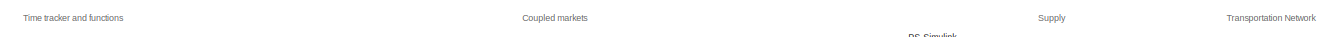
[diagram: root canvas - part 1/9, top left region]
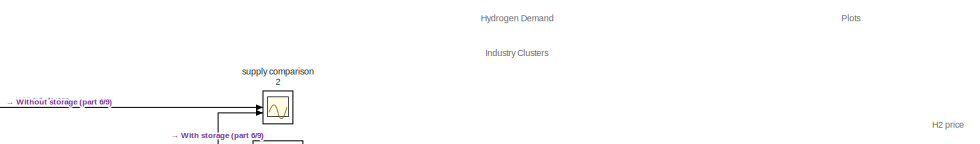
[diagram: root canvas - part 2/9, top right region]
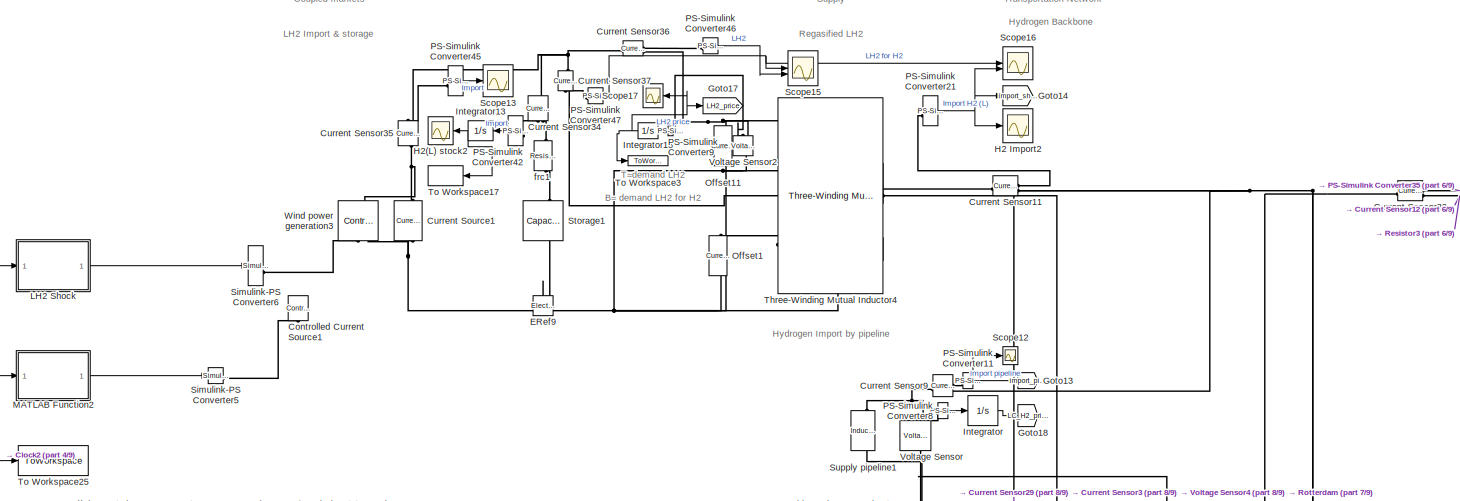
[diagram: root canvas - part 3/9, top left region]
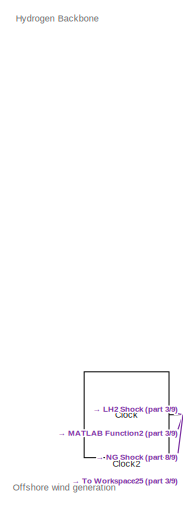
[diagram: root canvas - part 4/9, top left region]
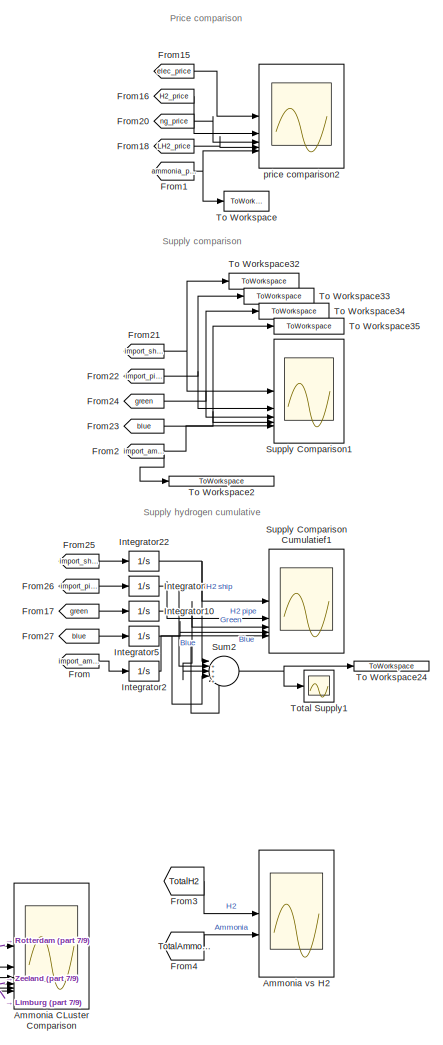
[diagram: root canvas - part 5/9, middle right region]
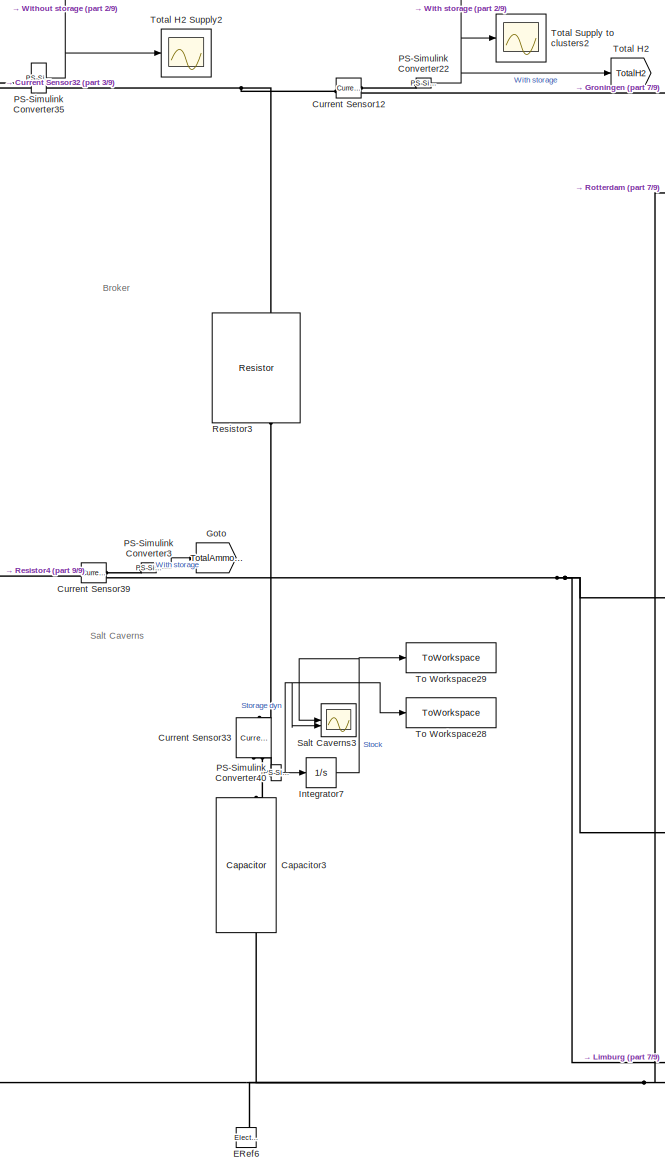
[diagram: root canvas - part 6/9, central region]
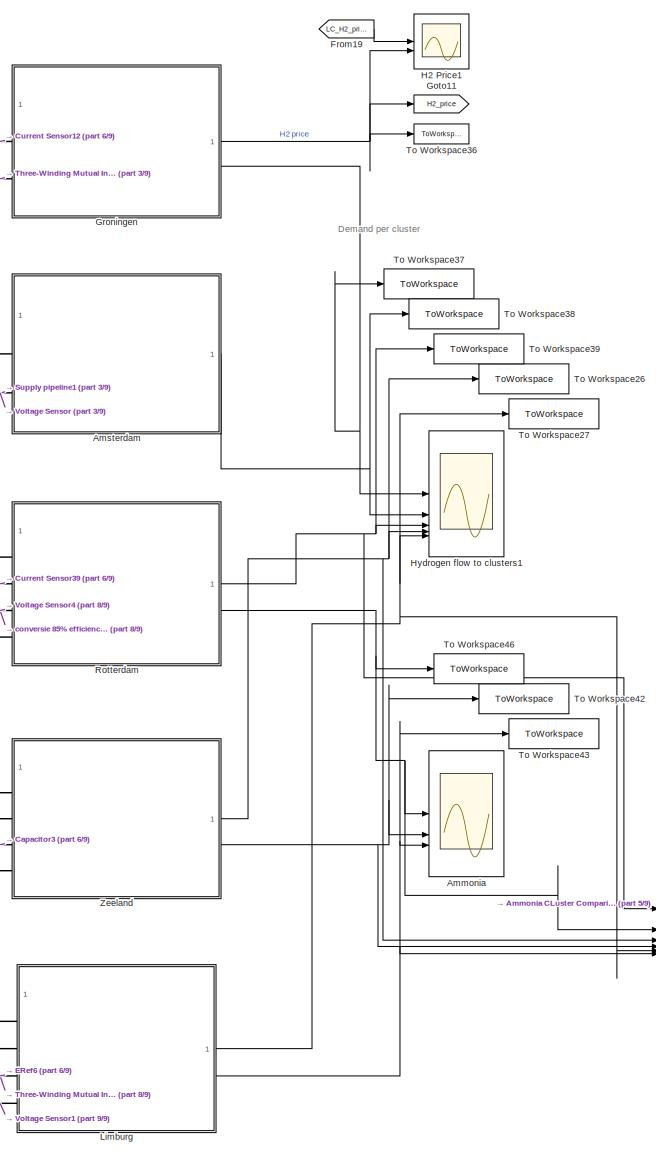
[diagram: root canvas - part 7/9, middle right region]
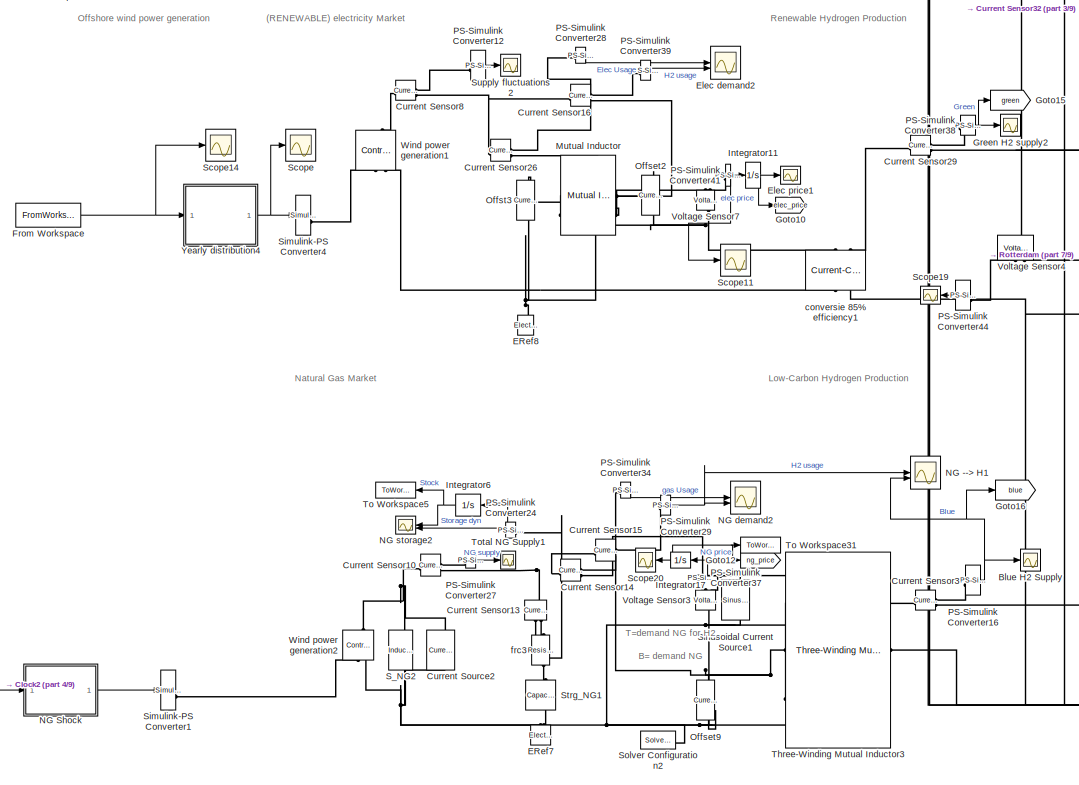
[diagram: root canvas - part 8/9, middle left region]
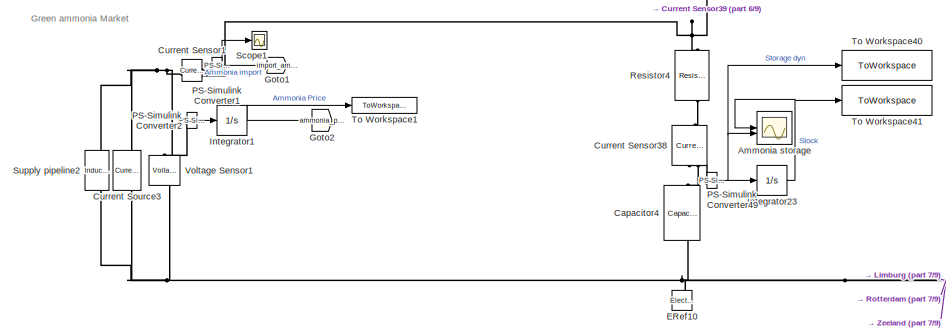
[diagram: root canvas - part 9/9, bottom center region]
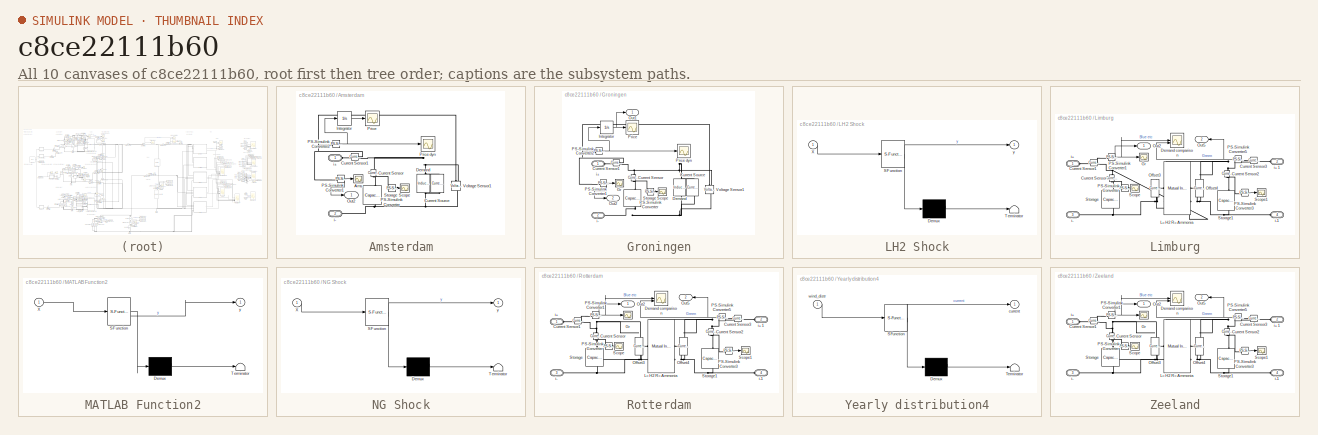
[diagram: thumbnail index - all 10 canvases of the model, root first then tree order]
MODEL slx_c8ce22111b60
KIND model
CONFIG AbsTol = auto
CONFIG EnableMultiTasking = off
CONFIG FixedStep = 1/24
CONFIG MaxStep = auto
CONFIG MinStep = auto
CONFIG RelTol = 1e-3
CONFIG SampleTimeConstraint = Unconstrained
CONFIG SolverName = FixedStepAuto
CONFIG StartTime = 0.0
CONFIG StopTime = Z
BLOCK [Scope] Ammonia
  Floating = off
  NumInputPorts = 3
  ScopeSpecificationString = Simulink.scopes.TimeScopeBlockCfg('CurrentConfiguration', extmgr.ConfigurationSet(extmgr.Configuration('Core','General UI',true),extmgr.Configuration('Core','Source UI',true),extmgr.Configuration('Sources','WiredSimulink',true,'DataLoggingVariableName','ScopeData1'),extmgr.Configuration('Visuals','Time Domain',true,'SerializedDisplays',{struct('MinYLimReal','-0.02669','MaxYLimReal','0.1113','YLabe...<+1639ch>
BLOCK [Scope] Ammonia CLuster Comparison
  Floating = off
  NumInputPorts = 6
  ScopeSpecificationString = Simulink.scopes.TimeScopeBlockCfg('CurrentConfiguration', extmgr.ConfigurationSet(extmgr.Configuration('Core','General UI',true),extmgr.Configuration('Core','Source UI',true),extmgr.Configuration('Sources','WiredSimulink',true,'DataLoggingVariableName','ScopeData13'),extmgr.Configuration('Visuals','Time Domain',true,'SerializedDisplays',{struct('MinYLimReal','-0.06515','MaxYLimReal','0.18985','YLa...<+1707ch>
BLOCK [Scope] Ammonia storage
  Floating = off
  NumInputPorts = 2
  ScopeSpecificationString = Simulink.scopes.TimeScopeBlockCfg('CurrentConfiguration', extmgr.ConfigurationSet(extmgr.Configuration('Core','General UI',true),extmgr.Configuration('Core','Source UI',true),extmgr.Configuration('Sources','WiredSimulink',true,'DataLoggingVariableName','ScopeData2'),extmgr.Configuration('Visuals','Time Domain',true,'SerializedDisplays',{struct('MinYLimReal','-0.05503','MaxYLimReal','0.15942','YLab...<+1494ch>
BLOCK [Scope] Ammonia vs H2
  Floating = off
  NumInputPorts = 2
  ScopeSpecificationString = Simulink.scopes.TimeScopeBlockCfg('CurrentConfiguration', extmgr.ConfigurationSet(extmgr.Configuration('Core','General UI',true),extmgr.Configuration('Core','Source UI',true),extmgr.Configuration('Sources','WiredSimulink',true,'DataLoggingVariableName','ScopeData14'),extmgr.Configuration('Visuals','Time Domain',true,'SerializedDisplays',{struct('MinYLimReal','-0.03264','MaxYLimReal','0.49376','YLa...<+1615ch>
BLOCK [SubSystem] Amsterdam
BLOCK [Scope] Amsterdam/Ams
  Floating = off
  NumInputPorts = 1
  ScopeSpecificationString = Simulink.scopes.TimeScopeBlockCfg('CurrentConfiguration', extmgr.ConfigurationSet(extmgr.Configuration('Core','General UI',true),extmgr.Configuration('Core','Source UI',true),extmgr.Configuration('Sources','WiredSimulink',true,'DataLoggingVariableName','ScopeData34'),extmgr.Configuration('Visuals','Time Domain',true,'SerializedDisplays',{struct('MinYLimReal','-0.37733','MaxYLimReal','2.2197','YLab...<+1377ch>
BLOCK [Reference] Amsterdam/Current Sensor  REF=fl_lib/Electrical/Electrical Sensors/Current Sensor
  NameLocation = left
  SourceBlock = fl_lib/Electrical/Electrical Sensors/Current Sensor
  SourceType = Current Sensor
BLOCK [Reference] Amsterdam/Current Sensor1  REF=fl_lib/Electrical/Electrical Sensors/Current Sensor
  SourceBlock = fl_lib/Electrical/Electrical Sensors/Current Sensor
  SourceType = Current Sensor
BLOCK [Reference] Amsterdam/Current Source  REF=ee_lib/Sources/Current Source
  NameLocation = left
  SourceBlock = ee_lib/Sources/Current Source
  SourceType = Current Source
BLOCK [Reference] Amsterdam/Demand  REF=ee_lib/Passive/Inductor
  NameLocation = left
  SourceBlock = ee_lib/Passive/Inductor
  SourceType = Inductor
BLOCK [Integrator] Amsterdam/Integrator
BLOCK [Outport] Amsterdam/Out2
BLOCK [Reference] Amsterdam/PS-Simulink Converter  REF=nesl_utility/PS-Simulink
Converter
  SourceBlock = nesl_utility/PS-Simulink\nConverter
  SourceType = PS-Simulink\nConverter
BLOCK [Reference] Amsterdam/PS-Simulink Converter1  REF=nesl_utility/PS-Simulink
Converter
  SourceBlock = nesl_utility/PS-Simulink\nConverter
  SourceType = PS-Simulink\nConverter
BLOCK [Reference] Amsterdam/PS-Simulink Converter2  REF=nesl_utility/PS-Simulink
Converter
  SourceBlock = nesl_utility/PS-Simulink\nConverter
  SourceType = PS-Simulink\nConverter
BLOCK [Scope] Amsterdam/Price 
  Floating = off
  NumInputPorts = 1
  ScopeSpecificationString = Simulink.scopes.TimeScopeBlockCfg('CurrentConfiguration', extmgr.ConfigurationSet(extmgr.Configuration('Core','General UI',true),extmgr.Configuration('Core','Source UI',true),extmgr.Configuration('Sources','WiredSimulink',true,'DataLoggingVariableName','ScopeData35'),extmgr.Configuration('Visuals','Time Domain',true,'SerializedDisplays',{struct('MinYLimReal','-0.244','MaxYLimReal','0.02711','YLabe...<+1396ch>
BLOCK [Scope] Amsterdam/Price dyn
  Floating = off
  NumInputPorts = 1
  ScopeSpecificationString = Simulink.scopes.TimeScopeBlockCfg('CurrentConfiguration', extmgr.ConfigurationSet(extmgr.Configuration('Core','General UI',true),extmgr.Configuration('Core','Source UI',true),extmgr.Configuration('Sources','WiredSimulink',true,'DataLoggingVariableName','ScopeData36'),extmgr.Configuration('Visuals','Time Domain',true,'SerializedDisplays',{struct('MinYLimReal','-2.85552','MaxYLimReal','0.64869','YLa...<+1411ch>
BLOCK [Scope] Amsterdam/Scope
  Floating = off
  NumInputPorts = 1
  ScopeSpecificationString = Simulink.scopes.TimeScopeBlockCfg('CurrentConfiguration', extmgr.ConfigurationSet(extmgr.Configuration('Core','General UI',true),extmgr.Configuration('Core','Source UI',true),extmgr.Configuration('Sources','WiredSimulink',true,'DataLoggingVariableName','ScopeData37'),extmgr.Configuration('Visuals','Time Domain',true,'SerializedDisplays',{struct('MinYLimReal','-0.05818','MaxYLimReal','0.04351','YLa...<+1410ch>
BLOCK [Reference] Amsterdam/Storage  REF=fl_lib/Electrical/Electrical Elements/Capacitor
  NameLocation = right
  SourceBlock = fl_lib/Electrical/Electrical Elements/Capacitor
  SourceType = Capacitor
BLOCK [Reference] Amsterdam/Voltage Sensor1  REF=fl_lib/Electrical/Electrical Sensors/Voltage Sensor
  NameLocation = right
  SourceBlock = fl_lib/Electrical/Electrical Sensors/Voltage Sensor
  SourceType = Voltage Sensor
BLOCK [PMIOPort] Amsterdam/i+ 
  Side = Left
  Tag = PMCPort
BLOCK [PMIOPort] Amsterdam/i-
  Port = 2
  Side = Left
  Tag = PMCPort
BLOCK [Scope] Blue H2 Supply
  Floating = off
  NumInputPorts = 1
  ScopeSpecificationString = Simulink.scopes.TimeScopeBlockCfg('CurrentConfiguration', extmgr.ConfigurationSet(extmgr.Configuration('Core','General UI',true),extmgr.Configuration('Core','Source UI',true),extmgr.Configuration('Sources','WiredSimulink',true,'DataLoggingVariableName','ScopeData3'),extmgr.Configuration('Visuals','Time Domain',true,'SerializedDisplays',{struct('MinYLimReal','-0.07535','MaxYLimReal','0.18841','YLab...<+1398ch>
BLOCK [Reference] Capacitor3  REF=fl_lib/Electrical/Electrical Elements/Capacitor
  NameLocation = right
  SourceBlock = fl_lib/Electrical/Electrical Elements/Capacitor
  SourceType = Capacitor
BLOCK [Reference] Capacitor4  REF=fl_lib/Electrical/Electrical Elements/Capacitor
  NameLocation = right
  SourceBlock = fl_lib/Electrical/Electrical Elements/Capacitor
  SourceType = Capacitor
BLOCK [Clock] Clock2
  Decimation = 24
  DisplayTime = on
BLOCK [Reference] Controlled Current Source1  REF=fl_lib/Electrical/Electrical Sources/Controlled Current
Source
  Commented = on
  NameLocation = right
  SourceBlock = fl_lib/Electrical/Electrical Sources/Controlled Current\nSource
  SourceType = Controlled Current\nSource
BLOCK [Reference] Current Sensor1  REF=fl_lib/Electrical/Electrical Sensors/Current Sensor
  SourceBlock = fl_lib/Electrical/Electrical Sensors/Current Sensor
  SourceType = Current Sensor
BLOCK [Reference] Current Sensor10  REF=fl_lib/Electrical/Electrical Sensors/Current Sensor
  SourceBlock = fl_lib/Electrical/Electrical Sensors/Current Sensor
  SourceType = Current Sensor
BLOCK [Reference] Current Sensor11  REF=fl_lib/Electrical/Electrical Sensors/Current Sensor
  SourceBlock = fl_lib/Electrical/Electrical Sensors/Current Sensor
  SourceType = Current Sensor
BLOCK [Reference] Current Sensor12  REF=fl_lib/Electrical/Electrical Sensors/Current Sensor
  SourceBlock = fl_lib/Electrical/Electrical Sensors/Current Sensor
  SourceType = Current Sensor
BLOCK [Reference] Current Sensor13  REF=fl_lib/Electrical/Electrical Sensors/Current Sensor
  NameLocation = left
  SourceBlock = fl_lib/Electrical/Electrical Sensors/Current Sensor
  SourceType = Current Sensor
BLOCK [Reference] Current Sensor14  REF=fl_lib/Electrical/Electrical Sensors/Current Sensor
  SourceBlock = fl_lib/Electrical/Electrical Sensors/Current Sensor
  SourceType = Current Sensor
BLOCK [Reference] Current Sensor15  REF=fl_lib/Electrical/Electrical Sensors/Current Sensor
  SourceBlock = fl_lib/Electrical/Electrical Sensors/Current Sensor
  SourceType = Current Sensor
BLOCK [Reference] Current Sensor16  REF=fl_lib/Electrical/Electrical Sensors/Current Sensor
  SourceBlock = fl_lib/Electrical/Electrical Sensors/Current Sensor
  SourceType = Current Sensor
BLOCK [Reference] Current Sensor26  REF=fl_lib/Electrical/Electrical Sensors/Current Sensor
  SourceBlock = fl_lib/Electrical/Electrical Sensors/Current Sensor
  SourceType = Current Sensor
BLOCK [Reference] Current Sensor29  REF=fl_lib/Electrical/Electrical Sensors/Current Sensor
  SourceBlock = fl_lib/Electrical/Electrical Sensors/Current Sensor
  SourceType = Current Sensor
BLOCK [Reference] Current Sensor3  REF=fl_lib/Electrical/Electrical Sensors/Current Sensor
  SourceBlock = fl_lib/Electrical/Electrical Sensors/Current Sensor
  SourceType = Current Sensor
BLOCK [Reference] Current Sensor32  REF=fl_lib/Electrical/Electrical Sensors/Current Sensor
  SourceBlock = fl_lib/Electrical/Electrical Sensors/Current Sensor
  SourceType = Current Sensor
BLOCK [Reference] Current Sensor33  REF=fl_lib/Electrical/Electrical Sensors/Current Sensor
  NameLocation = left
  SourceBlock = fl_lib/Electrical/Electrical Sensors/Current Sensor
  SourceType = Current Sensor
BLOCK [Reference] Current Sensor34  REF=fl_lib/Electrical/Electrical Sensors/Current Sensor
  NameLocation = right
  SourceBlock = fl_lib/Electrical/Electrical Sensors/Current Sensor
  SourceType = Current Sensor
BLOCK [Reference] Current Sensor35  REF=fl_lib/Electrical/Electrical Sensors/Current Sensor
  NameLocation = right
  SourceBlock = fl_lib/Electrical/Electrical Sensors/Current Sensor
  SourceType = Current Sensor
BLOCK [Reference] Current Sensor36  REF=fl_lib/Electrical/Electrical Sensors/Current Sensor
  SourceBlock = fl_lib/Electrical/Electrical Sensors/Current Sensor
  SourceType = Current Sensor
BLOCK [Reference] Current Sensor37  REF=fl_lib/Electrical/Electrical Sensors/Current Sensor
  NameLocation = left
  SourceBlock = fl_lib/Electrical/Electrical Sensors/Current Sensor
  SourceType = Current Sensor
BLOCK [Reference] Current Sensor38  REF=fl_lib/Electrical/Electrical Sensors/Current Sensor
  NameLocation = left
  SourceBlock = fl_lib/Electrical/Electrical Sensors/Current Sensor
  SourceType = Current Sensor
BLOCK [Reference] Current Sensor39  REF=fl_lib/Electrical/Electrical Sensors/Current Sensor
  SourceBlock = fl_lib/Electrical/Electrical Sensors/Current Sensor
  SourceType = Current Sensor
BLOCK [Reference] Current Sensor8  REF=fl_lib/Electrical/Electrical Sensors/Current Sensor
  SourceBlock = fl_lib/Electrical/Electrical Sensors/Current Sensor
  SourceType = Current Sensor
BLOCK [Reference] Current Sensor9  REF=fl_lib/Electrical/Electrical Sensors/Current Sensor
  SourceBlock = fl_lib/Electrical/Electrical Sensors/Current Sensor
  SourceType = Current Sensor
BLOCK [Reference] Current Source1  REF=ee_lib/Sources/Current Source
  NameLocation = right
  SourceBlock = ee_lib/Sources/Current Source
  SourceType = Current Source
BLOCK [Reference] Current Source2  REF=ee_lib/Sources/Current Source
  NameLocation = right
  SourceBlock = ee_lib/Sources/Current Source
  SourceType = Current Source
BLOCK [Reference] Current Source3  REF=ee_lib/Sources/Current Source
  NameLocation = right
  SourceBlock = ee_lib/Sources/Current Source
  SourceType = Current Source
BLOCK [Reference] ERef10  REF=fl_lib/Electrical/Electrical Elements/Electrical Reference
  NameLocation = left
  SourceBlock = fl_lib/Electrical/Electrical Elements/Electrical Reference
  SourceType = Electrical Reference
BLOCK [Reference] ERef6  REF=fl_lib/Electrical/Electrical Elements/Electrical Reference
  NameLocation = left
  SourceBlock = fl_lib/Electrical/Electrical Elements/Electrical Reference
  SourceType = Electrical Reference
BLOCK [Reference] ERef7  REF=fl_lib/Electrical/Electrical Elements/Electrical Reference
  NameLocation = left
  SourceBlock = fl_lib/Electrical/Electrical Elements/Electrical Reference
  SourceType = Electrical Reference
BLOCK [Reference] ERef8  REF=fl_lib/Electrical/Electrical Elements/Electrical Reference
  NameLocation = left
  SourceBlock = fl_lib/Electrical/Electrical Elements/Electrical Reference
  SourceType = Electrical Reference
BLOCK [Reference] ERef9  REF=fl_lib/Electrical/Electrical Elements/Electrical Reference
  NameLocation = left
  SourceBlock = fl_lib/Electrical/Electrical Elements/Electrical Reference
  SourceType = Electrical Reference
BLOCK [Scope] Elec demand2
  Floating = off
  NumInputPorts = 2
  ScopeSpecificationString = Simulink.scopes.TimeScopeBlockCfg('CurrentConfiguration', extmgr.ConfigurationSet(extmgr.Configuration('Core','General UI',true),extmgr.Configuration('Core','Source UI',true),extmgr.Configuration('Sources','WiredSimulink',true,'DataLoggingVariableName','ScopeData4'),extmgr.Configuration('Visuals','Time Domain',true,'SerializedDisplays',{struct('MinYLimReal','-0.2591','MaxYLimReal','0.42323','YLabe...<+1494ch>
BLOCK [Scope] Elec price1
  Floating = off
  NameLocation = right
  NumInputPorts = 1
  ScopeSpecificationString = Simulink.scopes.TimeScopeBlockCfg('CurrentConfiguration', extmgr.ConfigurationSet(extmgr.Configuration('Core','General UI',true),extmgr.Configuration('Core','Source UI',true),extmgr.Configuration('Sources','WiredSimulink',true,'DataLoggingVariableName','ScopeData5'),extmgr.Configuration('Visuals','Time Domain',true,'SerializedDisplays',{struct('MinYLimReal','-0.05691','MaxYLimReal','0.07674','YLab...<+1489ch>
BLOCK [From] From
  GotoTag = import_ammonia
BLOCK [FromWorkspace] From Workspace
  OutDataTypeStr = double
  VariableName = Wind_Distr_2019_input
BLOCK [From] From1
  GotoTag = ammonia_price
BLOCK [From] From15
  GotoTag = elec_price
BLOCK [From] From16
  GotoTag = H2_price
BLOCK [From] From17
  GotoTag = green
BLOCK [From] From18
  GotoTag = LH2_price
BLOCK [From] From19
  GotoTag = LC_H2_price
BLOCK [From] From2
  GotoTag = import_ammonia
BLOCK [From] From20
  GotoTag = ng_price
BLOCK [From] From21
  GotoTag = import_ship
BLOCK [From] From22
  GotoTag = import_pipe
BLOCK [From] From23
  GotoTag = blue
BLOCK [From] From24
  GotoTag = green
BLOCK [From] From25
  GotoTag = import_ship
BLOCK [From] From26
  GotoTag = import_pipe
BLOCK [From] From27
  GotoTag = blue
BLOCK [From] From3
  GotoTag = TotalH2
BLOCK [From] From4
  GotoTag = TotalAmmonia
BLOCK [Goto] Goto
  GotoTag = TotalAmmonia
BLOCK [Goto] Goto1
  GotoTag = import_ammonia
BLOCK [Goto] Goto10
  GotoTag = elec_price
BLOCK [Goto] Goto11
  GotoTag = H2_price
BLOCK [Goto] Goto12
  GotoTag = ng_price
BLOCK [Goto] Goto13
  GotoTag = import_pipe
BLOCK [Goto] Goto14
  GotoTag = import_ship
BLOCK [Goto] Goto15
  GotoTag = green
BLOCK [Goto] Goto16
  GotoTag = blue
BLOCK [Goto] Goto17
  GotoTag = LH2_price
BLOCK [Goto] Goto18
  GotoTag = LC_H2_price
BLOCK [Goto] Goto2
  GotoTag = ammonia_price
BLOCK [Scope] Green H2 supply2
  Floating = off
  NumInputPorts = 1
  ScopeSpecificationString = Simulink.scopes.TimeScopeBlockCfg('CurrentConfiguration', extmgr.ConfigurationSet(extmgr.Configuration('Core','General UI',true),extmgr.Configuration('Core','Source UI',true),extmgr.Configuration('Sources','WiredSimulink',true,'DataLoggingVariableName','ScopeData6'),extmgr.Configuration('Visuals','Time Domain',true,'SerializedDisplays',{struct('MinYLimReal','-0.0315','MaxYLimReal','0.40721','YLabe...<+1435ch>
BLOCK [SubSystem] Groningen
BLOCK [Reference] Groningen/Current Sensor  REF=fl_lib/Electrical/Electrical Sensors/Current Sensor
  NameLocation = left
  SourceBlock = fl_lib/Electrical/Electrical Sensors/Current Sensor
  SourceType = Current Sensor
BLOCK [Reference] Groningen/Current Sensor1  REF=fl_lib/Electrical/Electrical Sensors/Current Sensor
  SourceBlock = fl_lib/Electrical/Electrical Sensors/Current Sensor
  SourceType = Current Sensor
BLOCK [Reference] Groningen/Current Source  REF=ee_lib/Sources/Current Source
  NameLocation = left
  SourceBlock = ee_lib/Sources/Current Source
  SourceType = Current Source
BLOCK [Reference] Groningen/Demand  REF=ee_lib/Passive/Inductor
  NameLocation = left
  SourceBlock = ee_lib/Passive/Inductor
  SourceType = Inductor
BLOCK [Scope] Groningen/Gr
  Floating = off
  NumInputPorts = 1
  ScopeSpecificationString = Simulink.scopes.TimeScopeBlockCfg('CurrentConfiguration', extmgr.ConfigurationSet(extmgr.Configuration('Core','General UI',true),extmgr.Configuration('Core','Source UI',true),extmgr.Configuration('Sources','WiredSimulink',true,'DataLoggingVariableName','ScopeData34'),extmgr.Configuration('Visuals','Time Domain',true,'SerializedDisplays',{struct('MinYLimReal','0.02465','MaxYLimReal','0.12849','YLab...<+1380ch>
BLOCK [Integrator] Groningen/Integrator
BLOCK [Outport] Groningen/Out1
BLOCK [Outport] Groningen/Out2
  Port = 2
BLOCK [Reference] Groningen/PS-Simulink Converter  REF=nesl_utility/PS-Simulink
Converter
  SourceBlock = nesl_utility/PS-Simulink\nConverter
  SourceType = PS-Simulink\nConverter
BLOCK [Reference] Groningen/PS-Simulink Converter1  REF=nesl_utility/PS-Simulink
Converter
  SourceBlock = nesl_utility/PS-Simulink\nConverter
  SourceType = PS-Simulink\nConverter
BLOCK [Reference] Groningen/PS-Simulink Converter2  REF=nesl_utility/PS-Simulink
Converter
  SourceBlock = nesl_utility/PS-Simulink\nConverter
  SourceType = PS-Simulink\nConverter
BLOCK [Scope] Groningen/Price 
  Floating = off
  NumInputPorts = 1
  ScopeSpecificationString = Simulink.scopes.TimeScopeBlockCfg('CurrentConfiguration', extmgr.ConfigurationSet(extmgr.Configuration('Core','General UI',true),extmgr.Configuration('Core','Source UI',true),extmgr.Configuration('Sources','WiredSimulink',true,'DataLoggingVariableName','ScopeData35'),extmgr.Configuration('Visuals','Time Domain',true,'SerializedDisplays',{struct('MinYLimReal','-0.00054','MaxYLimReal','0.00489','YLa...<+1404ch>
BLOCK [Scope] Groningen/Price dyn
  Floating = off
  NumInputPorts = 1
  ScopeSpecificationString = Simulink.scopes.TimeScopeBlockCfg('CurrentConfiguration', extmgr.ConfigurationSet(extmgr.Configuration('Core','General UI',true),extmgr.Configuration('Core','Source UI',true),extmgr.Configuration('Sources','WiredSimulink',true,'DataLoggingVariableName','ScopeData36'),extmgr.Configuration('Visuals','Time Domain',true,'SerializedDisplays',{struct('MinYLimReal','-0.00582','MaxYLimReal','0.01451','YLa...<+1411ch>
BLOCK [Scope] Groningen/Scope
  Floating = off
  NumInputPorts = 1
  ScopeSpecificationString = Simulink.scopes.TimeScopeBlockCfg('CurrentConfiguration', extmgr.ConfigurationSet(extmgr.Configuration('Core','General UI',true),extmgr.Configuration('Core','Source UI',true),extmgr.Configuration('Sources','WiredSimulink',true,'DataLoggingVariableName','ScopeData37'),extmgr.Configuration('Visuals','Time Domain',true,'SerializedDisplays',{struct('MinYLimReal','-0.00763','MaxYLimReal','0.02317','YLa...<+1425ch>
BLOCK [Reference] Groningen/Storage  REF=fl_lib/Electrical/Electrical Elements/Capacitor
  NameLocation = right
  SourceBlock = fl_lib/Electrical/Electrical Elements/Capacitor
  SourceType = Capacitor
BLOCK [Reference] Groningen/Voltage Sensor1  REF=fl_lib/Electrical/Electrical Sensors/Voltage Sensor
  NameLocation = right
  SourceBlock = fl_lib/Electrical/Electrical Sensors/Voltage Sensor
  SourceType = Voltage Sensor
BLOCK [PMIOPort] Groningen/i+ 
  Side = Left
  Tag = PMCPort
BLOCK [PMIOPort] Groningen/i-
  Port = 2
  Side = Left
  Tag = PMCPort
BLOCK [Scope] H2 Import2
  Floating = off
  NumInputPorts = 1
  ScopeSpecificationString = Simulink.scopes.TimeScopeBlockCfg('CurrentConfiguration', extmgr.ConfigurationSet(extmgr.Configuration('Core','General UI',true),extmgr.Configuration('Core','Source UI',true),extmgr.Configuration('Sources','WiredSimulink',true,'DataLoggingVariableName','ScopeData7'),extmgr.Configuration('Visuals','Time Domain',true,'SerializedDisplays',{struct('MinYLimReal','-0.31584','MaxYLimReal','0.40104','YLab...<+1447ch>
BLOCK [Scope] H2 Price1
  Floating = off
  NumInputPorts = 2
  ScopeSpecificationString = Simulink.scopes.TimeScopeBlockCfg('CurrentConfiguration', extmgr.ConfigurationSet(extmgr.Configuration('Core','General UI',true),extmgr.Configuration('Core','Source UI',true),extmgr.Configuration('Sources','WiredSimulink',true,'DataLoggingVariableName','ScopeData8'),extmgr.Configuration('Visuals','Time Domain',true,'SerializedDisplays',{struct('MinYLimReal','-0.00135','MaxYLimReal','0.01216','YLab...<+1458ch>
BLOCK [Scope] H2(L) stock2
  Floating = off
  NumInputPorts = 1
  ScopeSpecificationString = Simulink.scopes.TimeScopeBlockCfg('CurrentConfiguration', extmgr.ConfigurationSet(extmgr.Configuration('Core','General UI',true),extmgr.Configuration('Core','Source UI',true),extmgr.Configuration('Sources','WiredSimulink',true,'DataLoggingVariableName','ScopeData9'),extmgr.Configuration('Visuals','Time Domain',true,'SerializedDisplays',{struct('MinYLimReal','-0.04116','MaxYLimReal','0.00457','YLab...<+1443ch>
BLOCK [Scope] Hydrogen flow to clusters1
  Floating = off
  NumInputPorts = 5
  ScopeSpecificationString = Simulink.scopes.TimeScopeBlockCfg('CurrentConfiguration', extmgr.ConfigurationSet(extmgr.Configuration('Core','General UI',true),extmgr.Configuration('Core','Source UI',true),extmgr.Configuration('Sources','WiredSimulink',true,'DataLoggingVariableName','ScopeData10'),extmgr.Configuration('Visuals','Time Domain',true,'SerializedDisplays',{struct('MinYLimReal','-0.06515','MaxYLimReal','0.18985','YLa...<+1674ch>
BLOCK [Integrator] Integrator
BLOCK [Integrator] Integrator1
BLOCK [Integrator] Integrator10
BLOCK [Integrator] Integrator11
BLOCK [Integrator] Integrator13
BLOCK [Integrator] Integrator17
BLOCK [Integrator] Integrator18
BLOCK [Integrator] Integrator2
BLOCK [Integrator] Integrator22
BLOCK [Integrator] Integrator23
BLOCK [Integrator] Integrator5
BLOCK [Integrator] Integrator6
BLOCK [Integrator] Integrator7
BLOCK [Integrator] Integrator8
BLOCK [SubSystem] LH2 Shock
  Commented = on
  ErrorFcn = Stateflow.Translate.translate
  LibrarySourceBlock = simulink/User-Defined\nFunctions/MATLAB Function
  PermitHierarchicalResolution = ExplicitOnly
  SFBlockType = MATLAB Function
  TreatAsAtomicUnit = on
BLOCK [Demux] LH2 Shock/ Demux 
  Outputs = 1
BLOCK [S-Function] LH2 Shock/ SFunction 
  EnableBusSupport = on
  FunctionName = sf_sfun
  PortCounts = [1 2]
  SFcnIsStateOwnerBlock = off
  SFunctionDeploymentMode = off
  Tag = Stateflow S-Function 7
BLOCK [Terminator] LH2 Shock/ Terminator 
BLOCK [Inport] LH2 Shock/X
BLOCK [Outport] LH2 Shock/y
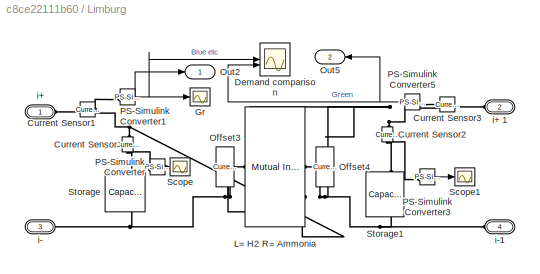
BLOCK [SubSystem] Limburg
BLOCK [Reference] Limburg/Current Sensor  REF=fl_lib/Electrical/Electrical Sensors/Current Sensor
  NameLocation = left
  SourceBlock = fl_lib/Electrical/Electrical Sensors/Current Sensor
  SourceType = Current Sensor
BLOCK [Reference] Limburg/Current Sensor1  REF=fl_lib/Electrical/Electrical Sensors/Current Sensor
  SourceBlock = fl_lib/Electrical/Electrical Sensors/Current Sensor
  SourceType = Current Sensor
BLOCK [Reference] Limburg/Current Sensor2  REF=fl_lib/Electrical/Electrical Sensors/Current Sensor
  NameLocation = left
  SourceBlock = fl_lib/Electrical/Electrical Sensors/Current Sensor
  SourceType = Current Sensor
BLOCK [Reference] Limburg/Current Sensor3  REF=fl_lib/Electrical/Electrical Sensors/Current Sensor
  SourceBlock = fl_lib/Electrical/Electrical Sensors/Current Sensor
  SourceType = Current Sensor
BLOCK [Scope] Limburg/Demand comparison
  Floating = off
  NumInputPorts = 2
  ScopeSpecificationString = Simulink.scopes.TimeScopeBlockCfg('CurrentConfiguration', extmgr.ConfigurationSet(extmgr.Configuration('Core','General UI',true),extmgr.Configuration('Core','Source UI',true),extmgr.Configuration('Sources','WiredSimulink',true,'DataLoggingVariableName','ScopeData9'),extmgr.Configuration('Visuals','Time Domain',true),extmgr.Configuration('Tools','Plot Navigation',true),extmgr.Configuration('Tools',...<+40ch>
BLOCK [Scope] Limburg/Gr
  Floating = off
  NumInputPorts = 1
  ScopeSpecificationString = Simulink.scopes.TimeScopeBlockCfg('CurrentConfiguration', extmgr.ConfigurationSet(extmgr.Configuration('Core','General UI',true),extmgr.Configuration('Core','Source UI',true),extmgr.Configuration('Sources','WiredSimulink',true,'DataLoggingVariableName','ScopeData10'),extmgr.Configuration('Visuals','Time Domain',true,'SerializedDisplays',{struct('MinYLimReal','0.02465','MaxYLimReal','0.12849','YLab...<+1380ch>
BLOCK [Reference] Limburg/L= H2 R= Ammonia  REF=ee_lib/Passive/Transformers/Mutual Inductor
  SourceBlock = ee_lib/Passive/Transformers/Mutual Inductor
  SourceType = Mutual Inductor
BLOCK [Reference] Limburg/Offset3  REF=ee_lib/Sources/Current Source
  NameLocation = right
  SourceBlock = ee_lib/Sources/Current Source
  SourceType = Current Source
BLOCK [Reference] Limburg/Offset4  REF=ee_lib/Sources/Current Source
  NameLocation = right
  SourceBlock = ee_lib/Sources/Current Source
  SourceType = Current Source
BLOCK [Outport] Limburg/Out2
BLOCK [Outport] Limburg/Out5
  Port = 2
BLOCK [Reference] Limburg/PS-Simulink Converter  REF=nesl_utility/PS-Simulink
Converter
  SourceBlock = nesl_utility/PS-Simulink\nConverter
  SourceType = PS-Simulink\nConverter
BLOCK [Reference] Limburg/PS-Simulink Converter1  REF=nesl_utility/PS-Simulink
Converter
  SourceBlock = nesl_utility/PS-Simulink\nConverter
  SourceType = PS-Simulink\nConverter
BLOCK [Reference] Limburg/PS-Simulink Converter3  REF=nesl_utility/PS-Simulink
Converter
  SourceBlock = nesl_utility/PS-Simulink\nConverter
  SourceType = PS-Simulink\nConverter
BLOCK [Reference] Limburg/PS-Simulink Converter5  REF=nesl_utility/PS-Simulink
Converter
  SourceBlock = nesl_utility/PS-Simulink\nConverter
  SourceType = PS-Simulink\nConverter
BLOCK [Scope] Limburg/Scope
  Floating = off
  NumInputPorts = 1
  ScopeSpecificationString = Simulink.scopes.TimeScopeBlockCfg('CurrentConfiguration', extmgr.ConfigurationSet(extmgr.Configuration('Core','General UI',true),extmgr.Configuration('Core','Source UI',true),extmgr.Configuration('Sources','WiredSimulink',true,'DataLoggingVariableName','ScopeData11'),extmgr.Configuration('Visuals','Time Domain',true,'SerializedDisplays',{struct('MinYLimReal','-0.06197','MaxYLimReal','0.0428','YLab...<+1423ch>
BLOCK [Scope] Limburg/Scope1
  Floating = off
  NumInputPorts = 1
  ScopeSpecificationString = Simulink.scopes.TimeScopeBlockCfg('CurrentConfiguration', extmgr.ConfigurationSet(extmgr.Configuration('Core','General UI',true),extmgr.Configuration('Core','Source UI',true),extmgr.Configuration('Sources','WiredSimulink',true,'DataLoggingVariableName','ScopeData12'),extmgr.Configuration('Visuals','Time Domain',true,'SerializedDisplays',{struct('MinYLimReal','-0.06197','MaxYLimReal','0.0428','YLab...<+1423ch>
BLOCK [Reference] Limburg/Storage  REF=fl_lib/Electrical/Electrical Elements/Capacitor
  NameLocation = right
  SourceBlock = fl_lib/Electrical/Electrical Elements/Capacitor
  SourceType = Capacitor
BLOCK [Reference] Limburg/Storage1  REF=fl_lib/Electrical/Electrical Elements/Capacitor
  NameLocation = right
  SourceBlock = fl_lib/Electrical/Electrical Elements/Capacitor
  SourceType = Capacitor
BLOCK [PMIOPort] Limburg/i+ 
  Side = Left
  Tag = PMCPort
BLOCK [PMIOPort] Limburg/i+ 1
  Port = 2
  Side = Left
  Tag = PMCPort
BLOCK [PMIOPort] Limburg/i-
  Port = 3
  Side = Left
  Tag = PMCPort
BLOCK [PMIOPort] Limburg/i-1
  Port = 4
  Side = Left
  Tag = PMCPort
BLOCK [SubSystem] MATLAB Function2
  Commented = on
  ErrorFcn = Stateflow.Translate.translate
  LibrarySourceBlock = simulink/User-Defined\nFunctions/MATLAB Function
  PermitHierarchicalResolution = ExplicitOnly
  SFBlockType = MATLAB Function
  TreatAsAtomicUnit = on
BLOCK [Demux] MATLAB Function2/ Demux 
  Outputs = 1
BLOCK [S-Function] MATLAB Function2/ SFunction 
  EnableBusSupport = on
  FunctionName = sf_sfun
  PortCounts = [1 2]
  SFcnIsStateOwnerBlock = off
  SFunctionDeploymentMode = off
  Tag = Stateflow S-Function 6
BLOCK [Terminator] MATLAB Function2/ Terminator 
BLOCK [Inport] MATLAB Function2/X
BLOCK [Outport] MATLAB Function2/y
BLOCK [Reference] Mutual Inductor  REF=fl_lib/Electrical/Electrical Elements/Mutual Inductor
  SourceBlock = fl_lib/Electrical/Electrical Elements/Mutual Inductor
  SourceType = Mutual Inductor
BLOCK [Scope] NG --> H1
  Floating = off
  NumInputPorts = 2
  ScopeSpecificationString = Simulink.scopes.TimeScopeBlockCfg('CurrentConfiguration', extmgr.ConfigurationSet(extmgr.Configuration('Core','General UI',true),extmgr.Configuration('Core','Source UI',true),extmgr.Configuration('Sources','WiredSimulink',true,'DataLoggingVariableName','ScopeData11'),extmgr.Configuration('Visuals','Time Domain',true,'SerializedDisplays',{struct('MinYLimReal','-0.20264','MaxYLimReal','0.33461','YLa...<+1446ch>
BLOCK [SubSystem] NG Shock
  Commented = on
  ErrorFcn = Stateflow.Translate.translate
  LibrarySourceBlock = simulink/User-Defined\nFunctions/MATLAB Function
  PermitHierarchicalResolution = ExplicitOnly
  SFBlockType = MATLAB Function
  TreatAsAtomicUnit = on
BLOCK [Demux] NG Shock/ Demux 
  Outputs = 1
BLOCK [S-Function] NG Shock/ SFunction 
  EnableBusSupport = on
  FunctionName = sf_sfun
  PortCounts = [1 2]
  SFcnIsStateOwnerBlock = off
  SFunctionDeploymentMode = off
  Tag = Stateflow S-Function 8
BLOCK [Terminator] NG Shock/ Terminator 
BLOCK [Inport] NG Shock/X
BLOCK [Outport] NG Shock/y
BLOCK [Scope] NG demand2
  Floating = off
  NumInputPorts = 2
  ScopeSpecificationString = Simulink.scopes.TimeScopeBlockCfg('CurrentConfiguration', extmgr.ConfigurationSet(extmgr.Configuration('Core','General UI',true),extmgr.Configuration('Core','Source UI',true),extmgr.Configuration('Sources','WiredSimulink',true,'DataLoggingVariableName','ScopeData12'),extmgr.Configuration('Visuals','Time Domain',true,'SerializedDisplays',{struct('MinYLimReal','-0.13763','MaxYLimReal','0.65974','YLa...<+1451ch>
BLOCK [Scope] NG storage2
  Floating = off
  NumInputPorts = 2
  ScopeSpecificationString = Simulink.scopes.TimeScopeBlockCfg('CurrentConfiguration', extmgr.ConfigurationSet(extmgr.Configuration('Core','General UI',true),extmgr.Configuration('Core','Source UI',true),extmgr.Configuration('Sources','WiredSimulink',true,'DataLoggingVariableName','ScopeData13'),extmgr.Configuration('Visuals','Time Domain',true,'SerializedDisplays',{struct('MinYLimReal','-0.0773','MaxYLimReal','0.05876','YLab...<+1491ch>
BLOCK [Reference] Offset1  REF=ee_lib/Sources/Current Source
  NameLocation = right
  SourceBlock = ee_lib/Sources/Current Source
  SourceType = Current Source
BLOCK [Reference] Offset11  REF=ee_lib/Sources/Current Source
  NameLocation = right
  SourceBlock = ee_lib/Sources/Current Source
  SourceType = Current Source
BLOCK [Reference] Offset2  REF=ee_lib/Sources/Current Source
  NameLocation = right
  SourceBlock = ee_lib/Sources/Current Source
  SourceType = Current Source
BLOCK [Reference] Offset9  REF=ee_lib/Sources/Current Source
  NameLocation = right
  SourceBlock = ee_lib/Sources/Current Source
  SourceType = Current Source
BLOCK [Reference] Offst3  REF=ee_lib/Sources/Current Source
  NameLocation = right
  SourceBlock = ee_lib/Sources/Current Source
  SourceType = Current Source
BLOCK [Reference] PS-Simulink Converter1  REF=nesl_utility/PS-Simulink
Converter
  NameLocation = top
  SourceBlock = nesl_utility/PS-Simulink\nConverter
  SourceType = PS-Simulink\nConverter
BLOCK [Reference] PS-Simulink Converter11  REF=nesl_utility/PS-Simulink
Converter
  NameLocation = top
  SourceBlock = nesl_utility/PS-Simulink\nConverter
  SourceType = PS-Simulink\nConverter
BLOCK [Reference] PS-Simulink Converter12  REF=nesl_utility/PS-Simulink
Converter
  NameLocation = top
  SourceBlock = nesl_utility/PS-Simulink\nConverter
  SourceType = PS-Simulink\nConverter
BLOCK [Reference] PS-Simulink Converter16  REF=nesl_utility/PS-Simulink
Converter
  NameLocation = top
  SourceBlock = nesl_utility/PS-Simulink\nConverter
  SourceType = PS-Simulink\nConverter
BLOCK [Reference] PS-Simulink Converter2  REF=nesl_utility/PS-Simulink
Converter
  NameLocation = top
  SourceBlock = nesl_utility/PS-Simulink\nConverter
  SourceType = PS-Simulink\nConverter
BLOCK [Reference] PS-Simulink Converter21  REF=nesl_utility/PS-Simulink
Converter
  NameLocation = top
  SourceBlock = nesl_utility/PS-Simulink\nConverter
  SourceType = PS-Simulink\nConverter
BLOCK [Reference] PS-Simulink Converter22  REF=nesl_utility/PS-Simulink
Converter
  NameLocation = top
  SourceBlock = nesl_utility/PS-Simulink\nConverter
  SourceType = PS-Simulink\nConverter
BLOCK [Reference] PS-Simulink Converter24  REF=nesl_utility/PS-Simulink
Converter
  NameLocation = top
  SourceBlock = nesl_utility/PS-Simulink\nConverter
  SourceType = PS-Simulink\nConverter
BLOCK [Reference] PS-Simulink Converter27  REF=nesl_utility/PS-Simulink
Converter
  NameLocation = top
  SourceBlock = nesl_utility/PS-Simulink\nConverter
  SourceType = PS-Simulink\nConverter
BLOCK [Reference] PS-Simulink Converter28  REF=nesl_utility/PS-Simulink
Converter
  NameLocation = top
  SourceBlock = nesl_utility/PS-Simulink\nConverter
  SourceType = PS-Simulink\nConverter
BLOCK [Reference] PS-Simulink Converter29  REF=nesl_utility/PS-Simulink
Converter
  NameLocation = top
  SourceBlock = nesl_utility/PS-Simulink\nConverter
  SourceType = PS-Simulink\nConverter
BLOCK [Reference] PS-Simulink Converter3  REF=nesl_utility/PS-Simulink
Converter
  NameLocation = top
  SourceBlock = nesl_utility/PS-Simulink\nConverter
  SourceType = PS-Simulink\nConverter
BLOCK [Reference] PS-Simulink Converter34  REF=nesl_utility/PS-Simulink
Converter
  NameLocation = top
  SourceBlock = nesl_utility/PS-Simulink\nConverter
  SourceType = PS-Simulink\nConverter
BLOCK [Reference] PS-Simulink Converter35  REF=nesl_utility/PS-Simulink
Converter
  NameLocation = top
  SourceBlock = nesl_utility/PS-Simulink\nConverter
  SourceType = PS-Simulink\nConverter
BLOCK [Reference] PS-Simulink Converter37  REF=nesl_utility/PS-Simulink
Converter
  NameLocation = right
  SourceBlock = nesl_utility/PS-Simulink\nConverter
  SourceType = PS-Simulink\nConverter
BLOCK [Reference] PS-Simulink Converter38  REF=nesl_utility/PS-Simulink
Converter
  NameLocation = right
  SourceBlock = nesl_utility/PS-Simulink\nConverter
  SourceType = PS-Simulink\nConverter
BLOCK [Reference] PS-Simulink Converter39  REF=nesl_utility/PS-Simulink
Converter
  NameLocation = top
  SourceBlock = nesl_utility/PS-Simulink\nConverter
  SourceType = PS-Simulink\nConverter
BLOCK [Reference] PS-Simulink Converter40  REF=nesl_utility/PS-Simulink
Converter
  NameLocation = top
  SourceBlock = nesl_utility/PS-Simulink\nConverter
  SourceType = PS-Simulink\nConverter
BLOCK [Reference] PS-Simulink Converter41  REF=nesl_utility/PS-Simulink
Converter
  NameLocation = top
  SourceBlock = nesl_utility/PS-Simulink\nConverter
  SourceType = PS-Simulink\nConverter
BLOCK [Reference] PS-Simulink Converter42  REF=nesl_utility/PS-Simulink
Converter
  NameLocation = top
  SourceBlock = nesl_utility/PS-Simulink\nConverter
  SourceType = PS-Simulink\nConverter
BLOCK [Reference] PS-Simulink Converter44  REF=nesl_utility/PS-Simulink
Converter
  NameLocation = top
  SourceBlock = nesl_utility/PS-Simulink\nConverter
  SourceType = PS-Simulink\nConverter
BLOCK [Reference] PS-Simulink Converter45  REF=nesl_utility/PS-Simulink
Converter
  NameLocation = top
  SourceBlock = nesl_utility/PS-Simulink\nConverter
  SourceType = PS-Simulink\nConverter
BLOCK [Reference] PS-Simulink Converter46  REF=nesl_utility/PS-Simulink
Converter
  SourceBlock = nesl_utility/PS-Simulink\nConverter
  SourceType = PS-Simulink\nConverter
BLOCK [Reference] PS-Simulink Converter47  REF=nesl_utility/PS-Simulink
Converter
  SourceBlock = nesl_utility/PS-Simulink\nConverter
  SourceType = PS-Simulink\nConverter
BLOCK [Reference] PS-Simulink Converter49  REF=nesl_utility/PS-Simulink
Converter
  NameLocation = top
  SourceBlock = nesl_utility/PS-Simulink\nConverter
  SourceType = PS-Simulink\nConverter
BLOCK [Reference] PS-Simulink Converter8  REF=nesl_utility/PS-Simulink
Converter
  NameLocation = top
  SourceBlock = nesl_utility/PS-Simulink\nConverter
  SourceType = PS-Simulink\nConverter
BLOCK [Reference] PS-Simulink Converter9  REF=nesl_utility/PS-Simulink
Converter
  NameLocation = top
  SourceBlock = nesl_utility/PS-Simulink\nConverter
  SourceType = PS-Simulink\nConverter
BLOCK [Reference] Resistor3  REF=fl_lib/Electrical/Electrical Elements/Resistor
  NameLocation = right
  SourceBlock = fl_lib/Electrical/Electrical Elements/Resistor
  SourceType = Resistor
BLOCK [Reference] Resistor4  REF=fl_lib/Electrical/Electrical Elements/Resistor
  NameLocation = right
  SourceBlock = fl_lib/Electrical/Electrical Elements/Resistor
  SourceType = Resistor
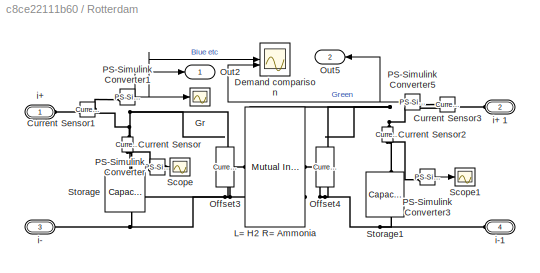
BLOCK [SubSystem] Rotterdam
BLOCK [Reference] Rotterdam/Current Sensor  REF=fl_lib/Electrical/Electrical Sensors/Current Sensor
  NameLocation = left
  SourceBlock = fl_lib/Electrical/Electrical Sensors/Current Sensor
  SourceType = Current Sensor
BLOCK [Reference] Rotterdam/Current Sensor1  REF=fl_lib/Electrical/Electrical Sensors/Current Sensor
  SourceBlock = fl_lib/Electrical/Electrical Sensors/Current Sensor
  SourceType = Current Sensor
BLOCK [Reference] Rotterdam/Current Sensor2  REF=fl_lib/Electrical/Electrical Sensors/Current Sensor
  NameLocation = left
  SourceBlock = fl_lib/Electrical/Electrical Sensors/Current Sensor
  SourceType = Current Sensor
BLOCK [Reference] Rotterdam/Current Sensor3  REF=fl_lib/Electrical/Electrical Sensors/Current Sensor
  SourceBlock = fl_lib/Electrical/Electrical Sensors/Current Sensor
  SourceType = Current Sensor
BLOCK [Scope] Rotterdam/Demand comparison
  Floating = off
  NumInputPorts = 2
  ScopeSpecificationString = Simulink.scopes.TimeScopeBlockCfg('CurrentConfiguration', extmgr.ConfigurationSet(extmgr.Configuration('Core','General UI',true),extmgr.Configuration('Core','Source UI',true),extmgr.Configuration('Sources','WiredSimulink',true,'DataLoggingVariableName','ScopeData1'),extmgr.Configuration('Visuals','Time Domain',true),extmgr.Configuration('Tools','Plot Navigation',true),extmgr.Configuration('Tools',...<+40ch>
BLOCK [Scope] Rotterdam/Gr
  Floating = off
  NumInputPorts = 1
  ScopeSpecificationString = Simulink.scopes.TimeScopeBlockCfg('CurrentConfiguration', extmgr.ConfigurationSet(extmgr.Configuration('Core','General UI',true),extmgr.Configuration('Core','Source UI',true),extmgr.Configuration('Sources','WiredSimulink',true,'DataLoggingVariableName','ScopeData2'),extmgr.Configuration('Visuals','Time Domain',true,'SerializedDisplays',{struct('MinYLimReal','0.02465','MaxYLimReal','0.12849','YLabe...<+1379ch>
BLOCK [Reference] Rotterdam/L= H2 R= Ammonia  REF=ee_lib/Passive/Transformers/Mutual Inductor
  SourceBlock = ee_lib/Passive/Transformers/Mutual Inductor
  SourceType = Mutual Inductor
BLOCK [Reference] Rotterdam/Offset3  REF=ee_lib/Sources/Current Source
  NameLocation = right
  SourceBlock = ee_lib/Sources/Current Source
  SourceType = Current Source
BLOCK [Reference] Rotterdam/Offset4  REF=ee_lib/Sources/Current Source
  NameLocation = right
  SourceBlock = ee_lib/Sources/Current Source
  SourceType = Current Source
BLOCK [Outport] Rotterdam/Out2
BLOCK [Outport] Rotterdam/Out5
  Port = 2
BLOCK [Reference] Rotterdam/PS-Simulink Converter  REF=nesl_utility/PS-Simulink
Converter
  SourceBlock = nesl_utility/PS-Simulink\nConverter
  SourceType = PS-Simulink\nConverter
BLOCK [Reference] Rotterdam/PS-Simulink Converter1  REF=nesl_utility/PS-Simulink
Converter
  SourceBlock = nesl_utility/PS-Simulink\nConverter
  SourceType = PS-Simulink\nConverter
BLOCK [Reference] Rotterdam/PS-Simulink Converter3  REF=nesl_utility/PS-Simulink
Converter
  SourceBlock = nesl_utility/PS-Simulink\nConverter
  SourceType = PS-Simulink\nConverter
BLOCK [Reference] Rotterdam/PS-Simulink Converter5  REF=nesl_utility/PS-Simulink
Converter
  SourceBlock = nesl_utility/PS-Simulink\nConverter
  SourceType = PS-Simulink\nConverter
BLOCK [Scope] Rotterdam/Scope
  Floating = off
  NumInputPorts = 1
  ScopeSpecificationString = Simulink.scopes.TimeScopeBlockCfg('CurrentConfiguration', extmgr.ConfigurationSet(extmgr.Configuration('Core','General UI',true),extmgr.Configuration('Core','Source UI',true),extmgr.Configuration('Sources','WiredSimulink',true,'DataLoggingVariableName','ScopeData3'),extmgr.Configuration('Visuals','Time Domain',true,'SerializedDisplays',{struct('MinYLimReal','-0.06197','MaxYLimReal','0.0428','YLabe...<+1422ch>
BLOCK [Scope] Rotterdam/Scope1
  Floating = off
  NumInputPorts = 1
  ScopeSpecificationString = Simulink.scopes.TimeScopeBlockCfg('CurrentConfiguration', extmgr.ConfigurationSet(extmgr.Configuration('Core','General UI',true),extmgr.Configuration('Core','Source UI',true),extmgr.Configuration('Sources','WiredSimulink',true,'DataLoggingVariableName','ScopeData4'),extmgr.Configuration('Visuals','Time Domain',true,'SerializedDisplays',{struct('MinYLimReal','-0.06197','MaxYLimReal','0.0428','YLabe...<+1422ch>
BLOCK [Reference] Rotterdam/Storage  REF=fl_lib/Electrical/Electrical Elements/Capacitor
  NameLocation = right
  SourceBlock = fl_lib/Electrical/Electrical Elements/Capacitor
  SourceType = Capacitor
BLOCK [Reference] Rotterdam/Storage1  REF=fl_lib/Electrical/Electrical Elements/Capacitor
  NameLocation = right
  SourceBlock = fl_lib/Electrical/Electrical Elements/Capacitor
  SourceType = Capacitor
BLOCK [PMIOPort] Rotterdam/i+ 
  Side = Left
  Tag = PMCPort
BLOCK [PMIOPort] Rotterdam/i+ 1
  Port = 2
  Side = Left
  Tag = PMCPort
BLOCK [PMIOPort] Rotterdam/i-
  Port = 3
  Side = Left
  Tag = PMCPort
BLOCK [PMIOPort] Rotterdam/i-1
  Port = 4
  Side = Left
  Tag = PMCPort
BLOCK [Reference] S_NG2  REF=ee_lib/Passive/Inductor
  NameLocation = right
  SourceBlock = ee_lib/Passive/Inductor
  SourceType = Inductor
BLOCK [Scope] Salt Caverns3
  Floating = off
  NumInputPorts = 2
  ScopeSpecificationString = Simulink.scopes.TimeScopeBlockCfg('CurrentConfiguration', extmgr.ConfigurationSet(extmgr.Configuration('Core','General UI',true),extmgr.Configuration('Core','Source UI',true),extmgr.Configuration('Sources','WiredSimulink',true,'DataLoggingVariableName','ScopeData14'),extmgr.Configuration('Visuals','Time Domain',true,'SerializedDisplays',{struct('MinYLimReal','-0.05503','MaxYLimReal','0.15942','YLa...<+1495ch>
BLOCK [Scope] Scope
  Floating = off
  NumInputPorts = 1
  ScopeSpecificationString = Simulink.scopes.TimeScopeBlockCfg('CurrentConfiguration', extmgr.ConfigurationSet(extmgr.Configuration('Core','General UI',true),extmgr.Configuration('Core','Source UI',true),extmgr.Configuration('Sources','WiredSimulink',true,'DataLoggingVariableName','ScopeData34'),extmgr.Configuration('Visuals','Time Domain',true),extmgr.Configuration('Tools','Plot Navigation',true),extmgr.Configuration('Tools'...<+41ch>
BLOCK [Scope] Scope1
  Floating = off
  NumInputPorts = 1
  ScopeSpecificationString = Simulink.scopes.TimeScopeBlockCfg('CurrentConfiguration', extmgr.ConfigurationSet(extmgr.Configuration('Core','General UI',true),extmgr.Configuration('Core','Source UI',true),extmgr.Configuration('Sources','WiredSimulink',true,'DataLoggingVariableName','ScopeData15'),extmgr.Configuration('Visuals','Time Domain',true,'SerializedDisplays',{struct('MinYLimReal','0.0639','MaxYLimReal','0.07486','YLabe...<+1368ch>
BLOCK [Scope] Scope11
  Floating = off
  NumInputPorts = 1
  ScopeSpecificationString = Simulink.scopes.TimeScopeBlockCfg('CurrentConfiguration', extmgr.ConfigurationSet(extmgr.Configuration('Core','General UI',true),extmgr.Configuration('Core','Source UI',true),extmgr.Configuration('Sources','WiredSimulink',true,'DataLoggingVariableName','ScopeData16'),extmgr.Configuration('Visuals','Time Domain',true,'SerializedDisplays',{struct('MinYLimReal','-57692832.34598','MaxYLimReal','704262...<+1460ch>
BLOCK [Scope] Scope12
  Floating = off
  NumInputPorts = 1
  ScopeSpecificationString = Simulink.scopes.TimeScopeBlockCfg('CurrentConfiguration', extmgr.ConfigurationSet(extmgr.Configuration('Core','General UI',true),extmgr.Configuration('Core','Source UI',true),extmgr.Configuration('Sources','WiredSimulink',true,'DataLoggingVariableName','ScopeData17'),extmgr.Configuration('Visuals','Time Domain',true,'SerializedDisplays',{struct('MinYLimReal','-0.08021','MaxYLimReal','0.13538','YLa...<+1375ch>
BLOCK [Scope] Scope13
  Floating = off
  NumInputPorts = 1
  ScopeSpecificationString = Simulink.scopes.TimeScopeBlockCfg('CurrentConfiguration', extmgr.ConfigurationSet(extmgr.Configuration('Core','General UI',true),extmgr.Configuration('Core','Source UI',true),extmgr.Configuration('Sources','WiredSimulink',true,'DataLoggingVariableName','ScopeData18'),extmgr.Configuration('Visuals','Time Domain',true,'SerializedDisplays',{struct('MinYLimReal','-0.125','MaxYLimReal','1.12497','YLabe...<+1410ch>
BLOCK [Scope] Scope14
  Floating = off
  NumInputPorts = 1
  ScopeSpecificationString = Simulink.scopes.TimeScopeBlockCfg('CurrentConfiguration', extmgr.ConfigurationSet(extmgr.Configuration('Core','General UI',true),extmgr.Configuration('Core','Source UI',true),extmgr.Configuration('Sources','WiredSimulink',true,'DataLoggingVariableName','ScopeData19'),extmgr.Configuration('Visuals','Time Domain',true,'SerializedDisplays',{struct('MinYLimReal','7.15389','MaxYLimReal','13.0047','YLab...<+1457ch>
BLOCK [Scope] Scope15
  Floating = off
  NumInputPorts = 2
  ScopeSpecificationString = Simulink.scopes.TimeScopeBlockCfg('CurrentConfiguration', extmgr.ConfigurationSet(extmgr.Configuration('Core','General UI',true),extmgr.Configuration('Core','Source UI',true),extmgr.Configuration('Sources','WiredSimulink',true,'DataLoggingVariableName','ScopeData20'),extmgr.Configuration('Visuals','Time Domain',true,'SerializedDisplays',{struct('MinYLimReal','-0.10688','MaxYLimReal','1.01188','YLa...<+1492ch>
BLOCK [Scope] Scope16
  Floating = off
  NumInputPorts = 2
  ScopeSpecificationString = Simulink.scopes.TimeScopeBlockCfg('CurrentConfiguration', extmgr.ConfigurationSet(extmgr.Configuration('Core','General UI',true),extmgr.Configuration('Core','Source UI',true),extmgr.Configuration('Sources','WiredSimulink',true,'DataLoggingVariableName','ScopeData21'),extmgr.Configuration('Visuals','Time Domain',true,'SerializedDisplays',{struct('MinYLimReal','-0.0099','MaxYLimReal','0.08912','YLab...<+1500ch>
BLOCK [Scope] Scope17
  Floating = off
  NumInputPorts = 2
  ScopeSpecificationString = Simulink.scopes.TimeScopeBlockCfg('CurrentConfiguration', extmgr.ConfigurationSet(extmgr.Configuration('Core','General UI',true),extmgr.Configuration('Core','Source UI',true),extmgr.Configuration('Sources','WiredSimulink',true,'DataLoggingVariableName','ScopeData22'),extmgr.Configuration('Visuals','Time Domain',true,'SerializedDisplays',{struct('MinYLimReal','-0.03366','MaxYLimReal','0.00374','YLa...<+1506ch>
BLOCK [Scope] Scope19
  Floating = off
  NumInputPorts = 1
  ScopeSpecificationString = Simulink.scopes.TimeScopeBlockCfg('CurrentConfiguration', extmgr.ConfigurationSet(extmgr.Configuration('Core','General UI',true),extmgr.Configuration('Core','Source UI',true),extmgr.Configuration('Sources','WiredSimulink',true,'DataLoggingVariableName','ScopeData23'),extmgr.Configuration('Visuals','Time Domain',true,'SerializedDisplays',{struct('MinYLimReal','-0.17459','MaxYLimReal','0.1293','YLab...<+1454ch>
BLOCK [Scope] Scope20
  Floating = off
  NumInputPorts = 1
  ScopeSpecificationString = Simulink.scopes.TimeScopeBlockCfg('CurrentConfiguration', extmgr.ConfigurationSet(extmgr.Configuration('Core','General UI',true),extmgr.Configuration('Core','Source UI',true),extmgr.Configuration('Sources','WiredSimulink',true,'DataLoggingVariableName','ScopeData24'),extmgr.Configuration('Visuals','Time Domain',true,'SerializedDisplays',{struct('MinYLimReal','-0.00204','MaxYLimReal','0.01839','YLa...<+1439ch>
BLOCK [Reference] Simulink-PS Converter1  REF=nesl_utility/Simulink-PS
Converter
  SourceBlock = nesl_utility/Simulink-PS\nConverter
  SourceType = Simulink-PS\nConverter
BLOCK [Reference] Simulink-PS Converter4  REF=nesl_utility/Simulink-PS
Converter
  SourceBlock = nesl_utility/Simulink-PS\nConverter
  SourceType = Simulink-PS\nConverter
BLOCK [Reference] Simulink-PS Converter5  REF=nesl_utility/Simulink-PS
Converter
  SourceBlock = nesl_utility/Simulink-PS\nConverter
  SourceType = Simulink-PS\nConverter
BLOCK [Reference] Simulink-PS Converter6  REF=nesl_utility/Simulink-PS
Converter
  SourceBlock = nesl_utility/Simulink-PS\nConverter
  SourceType = Simulink-PS\nConverter
BLOCK [Reference] Sinusoidal Current Source1  REF=ee_lib/Additional
Components/SPICE Sources/Sinusoidal Current
Source
  NameLocation = right
  SourceBlock = ee_lib/Additional\nComponents/SPICE Sources/Sinusoidal Current\nSource
  SourceType = Sinusoidal Current\nSource
BLOCK [Reference] Solver Configuration2  REF=nesl_utility/Solver
Configuration
  SourceBlock = nesl_utility/Solver\nConfiguration
  SourceType = Solver\nConfiguration
BLOCK [Reference] Storage1  REF=fl_lib/Electrical/Electrical Elements/Capacitor
  NameLocation = right
  SourceBlock = fl_lib/Electrical/Electrical Elements/Capacitor
  SourceType = Capacitor
BLOCK [Reference] Strg_NG1  REF=fl_lib/Electrical/Electrical Elements/Capacitor
  NameLocation = left
  SourceBlock = fl_lib/Electrical/Electrical Elements/Capacitor
  SourceType = Capacitor
BLOCK [Sum] Sum2
  Inputs = |+++++
BLOCK [Scope] Supply Comparison Cumulatief1
  Floating = off
  NumInputPorts = 5
  ScopeSpecificationString = Simulink.scopes.TimeScopeBlockCfg('CurrentConfiguration', extmgr.ConfigurationSet(extmgr.Configuration('Core','General UI',true),extmgr.Configuration('Core','Source UI',true),extmgr.Configuration('Sources','WiredSimulink',true,'DataLoggingVariableName','ScopeData25'),extmgr.Configuration('Visuals','Time Domain',true,'SerializedDisplays',{struct('MinYLimReal','28.3813','MaxYLimReal','28.38318','YLa...<+1563ch>
BLOCK [Scope] Supply Comparison1
  Floating = off
  NumInputPorts = 5
  ScopeSpecificationString = Simulink.scopes.TimeScopeBlockCfg('CurrentConfiguration', extmgr.ConfigurationSet(extmgr.Configuration('Core','General UI',true),extmgr.Configuration('Core','Source UI',true),extmgr.Configuration('Sources','WiredSimulink',true,'DataLoggingVariableName','ScopeData26'),extmgr.Configuration('Visuals','Time Domain',true,'SerializedDisplays',{struct('MinYLimReal','-0.25334','MaxYLimReal','0.51606','YLa...<+1553ch>
BLOCK [Scope] Supply fluctuations2
  Floating = off
  NumInputPorts = 1
  ScopeSpecificationString = Simulink.scopes.TimeScopeBlockCfg('CurrentConfiguration', extmgr.ConfigurationSet(extmgr.Configuration('Core','General UI',true),extmgr.Configuration('Core','Source UI',true),extmgr.Configuration('Sources','WiredSimulink',true,'DataLoggingVariableName','ScopeData27'),extmgr.Configuration('Visuals','Time Domain',true,'SerializedDisplays',{struct('MinYLimReal','-0.06093','MaxYLimReal','0.54837','YLa...<+1499ch>
BLOCK [Reference] Supply pipeline1  REF=ee_lib/Passive/Inductor
  NameLocation = right
  SourceBlock = ee_lib/Passive/Inductor
  SourceType = Inductor
BLOCK [Reference] Supply pipeline2  REF=ee_lib/Passive/Inductor
  NameLocation = right
  SourceBlock = ee_lib/Passive/Inductor
  SourceType = Inductor
BLOCK [Reference] Three-Winding Mutual Inductor3  REF=ee_lib/Passive/Transformers/Three-Winding Mutual
Inductor
  SourceBlock = ee_lib/Passive/Transformers/Three-Winding Mutual\nInductor
  SourceType = Three-Winding Mutual\nInductor
BLOCK [Reference] Three-Winding Mutual Inductor4  REF=ee_lib/Passive/Transformers/Three-Winding Mutual
Inductor
  SourceBlock = ee_lib/Passive/Transformers/Three-Winding Mutual\nInductor
  SourceType = Three-Winding Mutual\nInductor
BLOCK [ToWorkspace] To Workspace
  FixptAsFi = on
  MaxDataPoints = inf
  SampleTime = -1
  VariableName = Ammonia_price
BLOCK [ToWorkspace] To Workspace1
  FixptAsFi = on
  MaxDataPoints = inf
  SampleTime = -1
  VariableName = ammonia_price
BLOCK [ToWorkspace] To Workspace17
  FixptAsFi = on
  MaxDataPoints = inf
  SampleTime = -1
  VariableName = LH2_stock
BLOCK [ToWorkspace] To Workspace2
  FixptAsFi = on
  MaxDataPoints = inf
  SampleTime = -1
  VariableName = ammonia
BLOCK [ToWorkspace] To Workspace24
  FixptAsFi = on
  MaxDataPoints = inf
  SampleTime = -1
  VariableName = total_supply
BLOCK [ToWorkspace] To Workspace25
  FixptAsFi = on
  MaxDataPoints = inf
  SampleTime = -1
  VariableName = time1
BLOCK [ToWorkspace] To Workspace26
  FixptAsFi = on
  MaxDataPoints = inf
  SampleTime = -1
  Save2DSignal = 2-D array (concatenate along first dimension)
  VariableName = D_ZL
BLOCK [ToWorkspace] To Workspace27
  FixptAsFi = on
  MaxDataPoints = inf
  SampleTime = -1
  Save2DSignal = 2-D array (concatenate along first dimension)
  VariableName = D_LIM
BLOCK [ToWorkspace] To Workspace28
  FixptAsFi = on
  MaxDataPoints = inf
  SampleTime = -1
  Save2DSignal = 2-D array (concatenate along first dimension)
  VariableName = CS_dyn
BLOCK [ToWorkspace] To Workspace29
  FixptAsFi = on
  MaxDataPoints = inf
  SampleTime = -1
  VariableName = CS_stock
BLOCK [ToWorkspace] To Workspace3
  FixptAsFi = on
  MaxDataPoints = inf
  SampleTime = -1
  VariableName = LH2_price
BLOCK [ToWorkspace] To Workspace31
  FixptAsFi = on
  MaxDataPoints = inf
  SampleTime = -1
  Save2DSignal = 2-D array (concatenate along first dimension)
  VariableName = NG_price
BLOCK [ToWorkspace] To Workspace32
  MaxDataPoints = inf
  SampleTime = -1
  VariableName = ship
BLOCK [ToWorkspace] To Workspace33
  MaxDataPoints = inf
  SampleTime = -1
  VariableName = pipe
BLOCK [ToWorkspace] To Workspace34
  FixptAsFi = on
  MaxDataPoints = inf
  SampleTime = -1
  VariableName = green
BLOCK [ToWorkspace] To Workspace35
  FixptAsFi = on
  MaxDataPoints = inf
  SampleTime = -1
  VariableName = blue
BLOCK [ToWorkspace] To Workspace36
  FixptAsFi = on
  MaxDataPoints = inf
  SampleTime = -1
  VariableName = H2_price
BLOCK [ToWorkspace] To Workspace37
  FixptAsFi = on
  MaxDataPoints = inf
  SampleTime = -1
  Save2DSignal = 2-D array (concatenate along first dimension)
  VariableName = D_GR
BLOCK [ToWorkspace] To Workspace38
  FixptAsFi = on
  MaxDataPoints = inf
  SampleTime = -1
  Save2DSignal = 2-D array (concatenate along first dimension)
  VariableName = D_AMS
BLOCK [ToWorkspace] To Workspace39
  FixptAsFi = on
  MaxDataPoints = inf
  SampleTime = -1
  Save2DSignal = 2-D array (concatenate along first dimension)
  VariableName = D_RDAM
BLOCK [ToWorkspace] To Workspace40
  FixptAsFi = on
  MaxDataPoints = inf
  SampleTime = -1
  Save2DSignal = 2-D array (concatenate along first dimension)
  VariableName = ammonia_dyn
BLOCK [ToWorkspace] To Workspace41
  FixptAsFi = on
  MaxDataPoints = inf
  SampleTime = -1
  VariableName = ammonia_stock
BLOCK [ToWorkspace] To Workspace42
  FixptAsFi = on
  MaxDataPoints = inf
  SampleTime = -1
  Save2DSignal = 2-D array (concatenate along first dimension)
  VariableName = D_ZL1
BLOCK [ToWorkspace] To Workspace43
  FixptAsFi = on
  MaxDataPoints = inf
  SampleTime = -1
  Save2DSignal = 2-D array (concatenate along first dimension)
  VariableName = D_LIM1
BLOCK [ToWorkspace] To Workspace46
  FixptAsFi = on
  MaxDataPoints = inf
  SampleTime = -1
  Save2DSignal = 2-D array (concatenate along first dimension)
  VariableName = D_RDAM1
BLOCK [ToWorkspace] To Workspace5
  FixptAsFi = on
  MaxDataPoints = inf
  SampleTime = -1
  VariableName = NG_stock
BLOCK [Goto] Total H2
  GotoTag = TotalH2
BLOCK [Scope] Total H2 Supply2
  Floating = off
  NumInputPorts = 1
  ScopeSpecificationString = Simulink.scopes.TimeScopeBlockCfg('CurrentConfiguration', extmgr.ConfigurationSet(extmgr.Configuration('Core','General UI',true),extmgr.Configuration('Core','Source UI',true),extmgr.Configuration('Sources','WiredSimulink',true,'DataLoggingVariableName','ScopeData28'),extmgr.Configuration('Visuals','Time Domain',true,'SerializedDisplays',{struct('MinYLimReal','0.15398','MaxYLimReal','0.43547','YLab...<+1446ch>
BLOCK [Scope] Total NG Supply1
  Floating = off
  NumInputPorts = 1
  ScopeSpecificationString = Simulink.scopes.TimeScopeBlockCfg('CurrentConfiguration', extmgr.ConfigurationSet(extmgr.Configuration('Core','General UI',true),extmgr.Configuration('Core','Source UI',true),extmgr.Configuration('Sources','WiredSimulink',true,'DataLoggingVariableName','ScopeData29'),extmgr.Configuration('Visuals','Time Domain',true,'SerializedDisplays',{struct('MinYLimReal','0.36672','MaxYLimReal','0.69949','YLab...<+1426ch>
BLOCK [Scope] Total Supply to clusters2
  Floating = off
  NumInputPorts = 1
  ScopeSpecificationString = Simulink.scopes.TimeScopeBlockCfg('CurrentConfiguration', extmgr.ConfigurationSet(extmgr.Configuration('Core','General UI',true),extmgr.Configuration('Core','Source UI',true),extmgr.Configuration('Sources','WiredSimulink',true,'DataLoggingVariableName','ScopeData30'),extmgr.Configuration('Visuals','Time Domain',true,'SerializedDisplays',{struct('MinYLimReal','0.08987','MaxYLimReal','0.56318','YLab...<+1474ch>
BLOCK [Scope] Total Supply1
  Floating = off
  NumInputPorts = 1
  ScopeSpecificationString = Simulink.scopes.TimeScopeBlockCfg('CurrentConfiguration', extmgr.ConfigurationSet(extmgr.Configuration('Core','General UI',true),extmgr.Configuration('Core','Source UI',true),extmgr.Configuration('Sources','WiredSimulink',true,'DataLoggingVariableName','ScopeData31'),extmgr.Configuration('Visuals','Time Domain',true,'SerializedDisplays',{struct('MinYLimReal','135.92464','MaxYLimReal','136.51489','...<+1451ch>
BLOCK [Reference] Voltage Sensor  REF=fl_lib/Electrical/Electrical Sensors/Voltage Sensor
  NameLocation = right
  SourceBlock = fl_lib/Electrical/Electrical Sensors/Voltage Sensor
  SourceType = Voltage Sensor
BLOCK [Reference] Voltage Sensor1  REF=fl_lib/Electrical/Electrical Sensors/Voltage Sensor
  NameLocation = right
  SourceBlock = fl_lib/Electrical/Electrical Sensors/Voltage Sensor
  SourceType = Voltage Sensor
BLOCK [Reference] Voltage Sensor2  REF=fl_lib/Electrical/Electrical Sensors/Voltage Sensor
  NameLocation = right
  SourceBlock = fl_lib/Electrical/Electrical Sensors/Voltage Sensor
  SourceType = Voltage Sensor
BLOCK [Reference] Voltage Sensor3  REF=fl_lib/Electrical/Electrical Sensors/Voltage Sensor
  NameLocation = right
  SourceBlock = fl_lib/Electrical/Electrical Sensors/Voltage Sensor
  SourceType = Voltage Sensor
BLOCK [Reference] Voltage Sensor4  REF=fl_lib/Electrical/Electrical Sensors/Voltage Sensor
  LibrarySourceBlock = ee_lib/Sensors &\nTransducers/Voltage Sensor
  NameLocation = right
  SourceBlock = fl_lib/Electrical/Electrical Sensors/Voltage Sensor
  SourceType = Voltage Sensor
BLOCK [Reference] Voltage Sensor7  REF=fl_lib/Electrical/Electrical Sensors/Voltage Sensor
  NameLocation = right
  SourceBlock = fl_lib/Electrical/Electrical Sensors/Voltage Sensor
  SourceType = Voltage Sensor
BLOCK [Reference] Wind power generation1  REF=fl_lib/Electrical/Electrical Sources/Controlled Current
Source
  NameLocation = right
  SourceBlock = fl_lib/Electrical/Electrical Sources/Controlled Current\nSource
  SourceType = Controlled Current\nSource
BLOCK [Reference] Wind power generation2  REF=fl_lib/Electrical/Electrical Sources/Controlled Current
Source
  NameLocation = right
  SourceBlock = fl_lib/Electrical/Electrical Sources/Controlled Current\nSource
  SourceType = Controlled Current\nSource
BLOCK [Reference] Wind power generation3  REF=fl_lib/Electrical/Electrical Sources/Controlled Current
Source
  NameLocation = right
  SourceBlock = fl_lib/Electrical/Electrical Sources/Controlled Current\nSource
  SourceType = Controlled Current\nSource
BLOCK [SubSystem] Yearly distribution4
  ErrorFcn = Stateflow.Translate.translate
  LibrarySourceBlock = simulink/User-Defined\nFunctions/MATLAB Function
  PermitHierarchicalResolution = ExplicitOnly
  SFBlockType = MATLAB Function
  TreatAsAtomicUnit = on
BLOCK [Demux] Yearly distribution4/ Demux 
  Outputs = 1
BLOCK [S-Function] Yearly distribution4/ SFunction 
  EnableBusSupport = on
  FunctionName = sf_sfun
  PortCounts = [1 2]
  SFcnIsStateOwnerBlock = off
  SFunctionDeploymentMode = off
  Tag = Stateflow S-Function 12
BLOCK [Terminator] Yearly distribution4/ Terminator 
BLOCK [Outport] Yearly distribution4/current
BLOCK [Inport] Yearly distribution4/wind_distr
BLOCK [SubSystem] Zeeland
BLOCK [Reference] Zeeland/Current Sensor  REF=fl_lib/Electrical/Electrical Sensors/Current Sensor
  NameLocation = left
  SourceBlock = fl_lib/Electrical/Electrical Sensors/Current Sensor
  SourceType = Current Sensor
BLOCK [Reference] Zeeland/Current Sensor1  REF=fl_lib/Electrical/Electrical Sensors/Current Sensor
  SourceBlock = fl_lib/Electrical/Electrical Sensors/Current Sensor
  SourceType = Current Sensor
BLOCK [Reference] Zeeland/Current Sensor2  REF=fl_lib/Electrical/Electrical Sensors/Current Sensor
  NameLocation = left
  SourceBlock = fl_lib/Electrical/Electrical Sensors/Current Sensor
  SourceType = Current Sensor
BLOCK [Reference] Zeeland/Current Sensor3  REF=fl_lib/Electrical/Electrical Sensors/Current Sensor
  SourceBlock = fl_lib/Electrical/Electrical Sensors/Current Sensor
  SourceType = Current Sensor
BLOCK [Scope] Zeeland/Demand comparison
  Floating = off
  NumInputPorts = 2
  ScopeSpecificationString = Simulink.scopes.TimeScopeBlockCfg('CurrentConfiguration', extmgr.ConfigurationSet(extmgr.Configuration('Core','General UI',true),extmgr.Configuration('Core','Source UI',true),extmgr.Configuration('Sources','WiredSimulink',true,'DataLoggingVariableName','ScopeData5'),extmgr.Configuration('Visuals','Time Domain',true),extmgr.Configuration('Tools','Plot Navigation',true),extmgr.Configuration('Tools',...<+40ch>
BLOCK [Scope] Zeeland/Gr
  Floating = off
  NumInputPorts = 1
  ScopeSpecificationString = Simulink.scopes.TimeScopeBlockCfg('CurrentConfiguration', extmgr.ConfigurationSet(extmgr.Configuration('Core','General UI',true),extmgr.Configuration('Core','Source UI',true),extmgr.Configuration('Sources','WiredSimulink',true,'DataLoggingVariableName','ScopeData6'),extmgr.Configuration('Visuals','Time Domain',true,'SerializedDisplays',{struct('MinYLimReal','0.02465','MaxYLimReal','0.12849','YLabe...<+1379ch>
BLOCK [Reference] Zeeland/L= H2 R= Ammonia  REF=ee_lib/Passive/Transformers/Mutual Inductor
  SourceBlock = ee_lib/Passive/Transformers/Mutual Inductor
  SourceType = Mutual Inductor
BLOCK [Reference] Zeeland/Offset3  REF=ee_lib/Sources/Current Source
  NameLocation = right
  SourceBlock = ee_lib/Sources/Current Source
  SourceType = Current Source
BLOCK [Reference] Zeeland/Offset4  REF=ee_lib/Sources/Current Source
  NameLocation = right
  SourceBlock = ee_lib/Sources/Current Source
  SourceType = Current Source
BLOCK [Outport] Zeeland/Out2
BLOCK [Outport] Zeeland/Out5
  Port = 2
BLOCK [Reference] Zeeland/PS-Simulink Converter  REF=nesl_utility/PS-Simulink
Converter
  SourceBlock = nesl_utility/PS-Simulink\nConverter
  SourceType = PS-Simulink\nConverter
BLOCK [Reference] Zeeland/PS-Simulink Converter1  REF=nesl_utility/PS-Simulink
Converter
  SourceBlock = nesl_utility/PS-Simulink\nConverter
  SourceType = PS-Simulink\nConverter
BLOCK [Reference] Zeeland/PS-Simulink Converter3  REF=nesl_utility/PS-Simulink
Converter
  SourceBlock = nesl_utility/PS-Simulink\nConverter
  SourceType = PS-Simulink\nConverter
BLOCK [Reference] Zeeland/PS-Simulink Converter5  REF=nesl_utility/PS-Simulink
Converter
  SourceBlock = nesl_utility/PS-Simulink\nConverter
  SourceType = PS-Simulink\nConverter
BLOCK [Scope] Zeeland/Scope
  Floating = off
  NumInputPorts = 1
  ScopeSpecificationString = Simulink.scopes.TimeScopeBlockCfg('CurrentConfiguration', extmgr.ConfigurationSet(extmgr.Configuration('Core','General UI',true),extmgr.Configuration('Core','Source UI',true),extmgr.Configuration('Sources','WiredSimulink',true,'DataLoggingVariableName','ScopeData7'),extmgr.Configuration('Visuals','Time Domain',true,'SerializedDisplays',{struct('MinYLimReal','-0.06197','MaxYLimReal','0.0428','YLabe...<+1422ch>
BLOCK [Scope] Zeeland/Scope1
  Floating = off
  NumInputPorts = 1
  ScopeSpecificationString = Simulink.scopes.TimeScopeBlockCfg('CurrentConfiguration', extmgr.ConfigurationSet(extmgr.Configuration('Core','General UI',true),extmgr.Configuration('Core','Source UI',true),extmgr.Configuration('Sources','WiredSimulink',true,'DataLoggingVariableName','ScopeData8'),extmgr.Configuration('Visuals','Time Domain',true,'SerializedDisplays',{struct('MinYLimReal','-0.06197','MaxYLimReal','0.0428','YLabe...<+1422ch>
BLOCK [Reference] Zeeland/Storage  REF=fl_lib/Electrical/Electrical Elements/Capacitor
  NameLocation = right
  SourceBlock = fl_lib/Electrical/Electrical Elements/Capacitor
  SourceType = Capacitor
BLOCK [Reference] Zeeland/Storage1  REF=fl_lib/Electrical/Electrical Elements/Capacitor
  NameLocation = right
  SourceBlock = fl_lib/Electrical/Electrical Elements/Capacitor
  SourceType = Capacitor
BLOCK [PMIOPort] Zeeland/i+ 
  Side = Left
  Tag = PMCPort
BLOCK [PMIOPort] Zeeland/i+ 1
  Port = 2
  Side = Left
  Tag = PMCPort
BLOCK [PMIOPort] Zeeland/i-
  Port = 3
  Side = Left
  Tag = PMCPort
BLOCK [PMIOPort] Zeeland/i-1
  Port = 4
  Side = Left
  Tag = PMCPort
BLOCK [Reference] conversie 85% efficiency1  REF=fl_lib/Electrical/Electrical Sources/Current-Controlled
Current Source
  NameLocation = right
  SourceBlock = fl_lib/Electrical/Electrical Sources/Current-Controlled\nCurrent Source
  SourceType = Current-Controlled\nCurrent Source
BLOCK [Reference] frc1  REF=fl_lib/Electrical/Electrical Elements/Resistor
  AttributesFormatString = %<R> %<R_unit>
  NameLocation = left
  SourceBlock = fl_lib/Electrical/Electrical Elements/Resistor
  SourceType = Resistor
BLOCK [Reference] frc3  REF=fl_lib/Electrical/Electrical Elements/Resistor
  AttributesFormatString = %<R> %<R_unit>
  NameLocation = left
  SourceBlock = fl_lib/Electrical/Electrical Elements/Resistor
  SourceType = Resistor
BLOCK [Scope] price comparison2
  Floating = off
  NumInputPorts = 5
  ScopeSpecificationString = Simulink.scopes.TimeScopeBlockCfg('CurrentConfiguration', extmgr.ConfigurationSet(extmgr.Configuration('Core','General UI',true),extmgr.Configuration('Core','Source UI',true),extmgr.Configuration('Sources','WiredSimulink',true,'DataLoggingVariableName','ScopeData32'),extmgr.Configuration('Visuals','Time Domain',true,'SerializedDisplays',{struct('MinYLimReal','0.0007','MaxYLimReal','0.00514','YLabe...<+1637ch>
BLOCK [Scope] supply comparison2
  Floating = off
  NumInputPorts = 2
  ScopeSpecificationString = Simulink.scopes.TimeScopeBlockCfg('CurrentConfiguration', extmgr.ConfigurationSet(extmgr.Configuration('Core','General UI',true),extmgr.Configuration('Core','Source UI',true),extmgr.Configuration('Sources','WiredSimulink',true,'DataLoggingVariableName','ScopeData33'),extmgr.Configuration('Visuals','Time Domain',true,'SerializedDisplays',{struct('MinYLimReal','0.00554','MaxYLimReal','0.64334','YLab...<+1459ch>
ANNOTATION (root): Hydrogen Backbone
ANNOTATION (root): (RENEWABLE) electricity Market
ANNOTATION (root): Coupled markets
ANNOTATION (root): Hydrogen Demand
ANNOTATION (root): Plots
ANNOTATION (root): Supply
ANNOTATION (root): Transportation Network
ANNOTATION (root): Time tracker and functions
ANNOTATION (root): Broker
ANNOTATION (root): Demand per cluster
ANNOTATION (root): Green ammonia Market
ANNOTATION (root): H2 price
ANNOTATION (root): Hydrogen Import by pipeline
ANNOTATION (root): Industry Clusters
ANNOTATION (root): LH2 Import & storage
ANNOTATION (root): Low-Carbon Hydrogen Production
ANNOTATION (root): Natural Gas Market
ANNOTATION (root): Offshore wind generation
ANNOTATION (root): Offshore wind power generation
ANNOTATION (root): Price comparison
ANNOTATION (root): Regasified LH2
ANNOTATION (root): Renewable Hydrogen Production
ANNOTATION (root): Salt Caverns
ANNOTATION (root): Supply comparison
ANNOTATION (root): Supply hydrogen cumulative
ANNOTATION (root): T=demand LH2 B= demand LH2 for H2
ANNOTATION (root): T=demand NG for H2 B= demand NG
LINE Amsterdam/Integrator:1 -> Amsterdam/Price :1
NET Amsterdam/PS-Simulink Converter1:1 -> Amsterdam/Ams:1, Amsterdam/Out2:1
NET Amsterdam/PS-Simulink Converter2:1 -> Amsterdam/Integrator:1, Amsterdam/Price dyn:1
LINE Amsterdam/PS-Simulink Converter:1 -> Amsterdam/Scope:1
NET Amsterdam:1 -> Hydrogen flow to clusters1:2, To Workspace38:1
NET Clock2:1 -> LH2 Shock:1, MATLAB Function2:1, NG Shock:1, To Workspace25:1
NET From Workspace:1 -> Scope14:1, Yearly distribution4:1
LINE From15:1 -> price comparison2:1
LINE From16:1 -> price comparison2:2
LINE From17:1 -> Integrator10:1
LINE From18:1 -> price comparison2:4
LINE From19:1 -> H2 Price1:1
NET From1:1 -> To Workspace:1, price comparison2:5
LINE From20:1 -> price comparison2:3
NET From21:1 -> Supply Comparison1:1, To Workspace32:1
NET From22:1 -> Supply Comparison1:2, To Workspace33:1
NET From23:1 -> Supply Comparison1:4, To Workspace35:1
NET From24:1 -> Supply Comparison1:3, To Workspace34:1
LINE From25:1 -> Integrator22:1
LINE From26:1 -> Integrator8:1
LINE From27:1 -> Integrator5:1
NET From2:1 -> Supply Comparison1:5, To Workspace2:1
LINE From3:1 -> Ammonia vs H2:1
LINE From4:1 -> Ammonia vs H2:2
LINE From:1 -> Integrator2:1
NET Groningen/Integrator:1 -> Groningen/Out1:1, Groningen/Price :1
NET Groningen/PS-Simulink Converter1:1 -> Groningen/Gr:1, Groningen/Out2:1
NET Groningen/PS-Simulink Converter2:1 -> Groningen/Integrator:1, Groningen/Price dyn:1
LINE Groningen/PS-Simulink Converter:1 -> Groningen/Scope:1
NET Groningen:1 -> Goto11:1, H2 Price1:2, To Workspace36:1
NET Groningen:2 -> Hydrogen flow to clusters1:1, To Workspace37:1
NET Integrator10:1 -> Sum2:3, Sum2:5, Supply Comparison Cumulatief1:3
NET Integrator11:1 -> Elec price1:1, Goto10:1
NET Integrator13:1 -> H2(L) stock2:1, To Workspace17:1
NET Integrator17:1 -> Goto12:1, Scope20:1, To Workspace31:1
NET Integrator18:1 -> Goto17:1, Scope17:1, To Workspace3:1
NET Integrator1:1 -> Goto2:1, To Workspace1:1
NET Integrator22:1 -> Sum2:1, Supply Comparison Cumulatief1:1
NET Integrator23:1 -> Ammonia storage:1, To Workspace41:1
LINE Integrator2:1 -> Supply Comparison Cumulatief1:5
NET Integrator5:1 -> Sum2:4, Supply Comparison Cumulatief1:4
NET Integrator6:1 -> NG storage2:1, To Workspace5:1
NET Integrator7:1 -> Salt Caverns3:1, To Workspace29:1
NET Integrator8:1 -> Sum2:2, Supply Comparison Cumulatief1:2
LINE Integrator:1 -> Goto18:1
LINE LH2 Shock:1 -> Simulink-PS Converter6:1
NET Limburg/PS-Simulink Converter1:1 -> Limburg/Demand comparison:1, Limburg/Gr:1, Limburg/Out2:1
LINE Limburg/PS-Simulink Converter3:1 -> Limburg/Scope1:1
NET Limburg/PS-Simulink Converter5:1 -> Limburg/Demand comparison:2, Limburg/Out5:1
LINE Limburg/PS-Simulink Converter:1 -> Limburg/Scope:1
NET Limburg:1 -> Ammonia CLuster Comparison:5, Hydrogen flow to clusters1:5, To Workspace27:1
NET Limburg:2 -> Ammonia CLuster Comparison:6, Ammonia:3, To Workspace43:1
LINE MATLAB Function2:1 -> Simulink-PS Converter5:1
LINE NG Shock:1 -> Simulink-PS Converter1:1
NET PS-Simulink Converter11:1 -> Goto13:1, Scope12:1
LINE PS-Simulink Converter12:1 -> Supply fluctuations2:1
NET PS-Simulink Converter16:1 -> Blue H2 Supply:1, Goto16:1, NG --> H1:2
NET PS-Simulink Converter1:1 -> Goto1:1, Scope1:1
NET PS-Simulink Converter21:1 -> Goto14:1, H2 Import2:1, Scope16:2
NET PS-Simulink Converter22:1 -> Total H2:1, Total Supply to clusters2:1, supply comparison2:2
NET PS-Simulink Converter24:1 -> Integrator6:1, NG storage2:2
LINE PS-Simulink Converter27:1 -> Total NG Supply1:1
LINE PS-Simulink Converter28:1 -> Elec demand2:1
NET PS-Simulink Converter29:1 -> NG --> H1:1, NG demand2:2
LINE PS-Simulink Converter2:1 -> Integrator1:1
LINE PS-Simulink Converter34:1 -> NG demand2:1
NET PS-Simulink Converter35:1 -> Total H2 Supply2:1, supply comparison2:1
LINE PS-Simulink Converter37:1 -> Integrator17:1
NET PS-Simulink Converter38:1 -> Goto15:1, Green H2 supply2:1
LINE PS-Simulink Converter39:1 -> Elec demand2:2
LINE PS-Simulink Converter3:1 -> Goto:1
NET PS-Simulink Converter40:1 -> Integrator7:1, Salt Caverns3:2, To Workspace28:1
NET PS-Simulink Converter41:1 -> Integrator11:1, Scope11:1
LINE PS-Simulink Converter42:1 -> Integrator13:1
LINE PS-Simulink Converter44:1 -> Scope19:1
LINE PS-Simulink Converter45:1 -> Scope13:1
LINE PS-Simulink Converter46:1 -> Scope15:2
NET PS-Simulink Converter47:1 -> Scope15:1, Scope16:1
NET PS-Simulink Converter49:1 -> Ammonia storage:2, Integrator23:1, To Workspace40:1
LINE PS-Simulink Converter8:1 -> Integrator:1
LINE PS-Simulink Converter9:1 -> Integrator18:1
NET Rotterdam/PS-Simulink Converter1:1 -> Rotterdam/Demand comparison:1, Rotterdam/Gr:1, Rotterdam/Out2:1
LINE Rotterdam/PS-Simulink Converter3:1 -> Rotterdam/Scope1:1
NET Rotterdam/PS-Simulink Converter5:1 -> Rotterdam/Demand comparison:2, Rotterdam/Out5:1
LINE Rotterdam/PS-Simulink Converter:1 -> Rotterdam/Scope:1
NET Rotterdam:1 -> Ammonia CLuster Comparison:1, Hydrogen flow to clusters1:3, To Workspace39:1
NET Rotterdam:2 -> Ammonia CLuster Comparison:2, Ammonia:1, To Workspace46:1
NET Sum2:1 -> To Workspace24:1, Total Supply1:1
NET Yearly distribution4:1 -> Scope:1, Simulink-PS Converter4:1
NET Zeeland/PS-Simulink Converter1:1 -> Zeeland/Demand comparison:1, Zeeland/Gr:1, Zeeland/Out2:1
LINE Zeeland/PS-Simulink Converter3:1 -> Zeeland/Scope1:1
NET Zeeland/PS-Simulink Converter5:1 -> Zeeland/Demand comparison:2, Zeeland/Out5:1
LINE Zeeland/PS-Simulink Converter:1 -> Zeeland/Scope:1
NET Zeeland:1 -> Ammonia CLuster Comparison:3, Hydrogen flow to clusters1:4, To Workspace26:1
NET Zeeland:2 -> Ammonia CLuster Comparison:4, Ammonia:2, To Workspace42:1
PLINE Amsterdam/Current Sensor1:LConn1 -- Amsterdam/i+ :RConn1
PLINE Amsterdam/Current Sensor1:RConn1 -- Amsterdam/PS-Simulink Converter1:LConn1
PNET net1: Amsterdam/Current Sensor1:RConn2 -- Amsterdam/Current Sensor:LConn1 -- Amsterdam/Current Source:RConn1 -- Amsterdam/Demand:RConn1 -- Amsterdam/Voltage Sensor1:RConn2
PLINE Amsterdam/Current Sensor:RConn1 -- Amsterdam/PS-Simulink Converter:LConn1
PLINE Amsterdam/Current Sensor:RConn2 -- Amsterdam/Storage:RConn1
PNET net2: Amsterdam/Current Source:LConn1 -- Amsterdam/Demand:LConn1 -- Amsterdam/Storage:LConn1 -- Amsterdam/Voltage Sensor1:LConn1 -- Amsterdam/i-:RConn1
PLINE Amsterdam/PS-Simulink Converter2:LConn1 -- Amsterdam/Voltage Sensor1:RConn1
PNET net3: Amsterdam:LConn1 -- Current Sensor12:RConn2 -- Groningen:LConn1 -- Limburg:LConn1 -- Rotterdam:LConn1 -- Zeeland:LConn1
PNET net4: Amsterdam:LConn2 -- Capacitor3:LConn1 -- ERef6:LConn1 -- Groningen:LConn2 -- Limburg:LConn3 -- Rotterdam:LConn3 -- Supply pipeline1:LConn1 -- Three-Winding Mutual Inductor3:LConn1 -- Three-Winding Mutual Inductor4:LConn1 -- Voltage Sensor4:RConn2 -- Voltage Sensor:LConn1 -- Zeeland:LConn3 -- conversie 85% efficiency1:RConn2
PLINE Capacitor3:RConn1 -- Current Sensor33:RConn2
PNET net5: Capacitor4:LConn1 -- Current Source3:RConn1 -- ERef10:LConn1 -- Limburg:LConn4 -- Rotterdam:LConn4 -- Supply pipeline2:LConn1 -- Voltage Sensor1:LConn1 -- Zeeland:LConn4
PLINE Capacitor4:RConn1 -- Current Sensor38:RConn2
PLINE Controlled Current Source1:RConn1 -- Simulink-PS Converter5:RConn1
PNET net6: Current Sensor10:LConn1 -- Current Source2:LConn1 -- S_NG2:RConn1 -- Wind power generation2:LConn1
PLINE Current Sensor10:RConn1 -- PS-Simulink Converter27:LConn1
PNET net7: Current Sensor10:RConn2 -- Current Sensor13:LConn1 -- Current Sensor14:LConn1 -- Current Sensor15:LConn1
PLINE Current Sensor11:LConn1 -- Three-Winding Mutual Inductor4:LConn2
PLINE Current Sensor11:RConn1 -- PS-Simulink Converter21:LConn1
PNET net8: Current Sensor11:RConn2 -- Current Sensor29:RConn2 -- Current Sensor32:LConn1 -- Current Sensor3:RConn2 -- Current Sensor9:RConn2 -- Voltage Sensor4:LConn1
PNET net9: Current Sensor12:LConn1 -- Current Sensor32:RConn2 -- Resistor3:RConn1
PLINE Current Sensor12:RConn1 -- PS-Simulink Converter22:LConn1
PLINE Current Sensor13:RConn1 -- PS-Simulink Converter24:LConn1
PLINE Current Sensor13:RConn2 -- frc3:RConn1
PLINE Current Sensor14:RConn1 -- PS-Simulink Converter34:LConn1
PNET net10: Current Sensor14:RConn2 -- Sinusoidal Current Source1:LConn1 -- Three-Winding Mutual Inductor3:RConn4 -- Voltage Sensor3:RConn2
PLINE Current Sensor15:RConn1 -- PS-Simulink Converter29:LConn1
PNET net11: Current Sensor15:RConn2 -- Offset9:RConn1 -- Three-Winding Mutual Inductor3:RConn2
PNET net12: Current Sensor16:LConn1 -- Current Sensor26:LConn1 -- Current Sensor8:RConn2
PLINE Current Sensor16:RConn1 -- PS-Simulink Converter39:LConn1
PNET net13: Current Sensor16:RConn2 -- Mutual Inductor:LConn2 -- Offset2:RConn1 -- Voltage Sensor7:RConn2
PNET net14: Current Sensor1:LConn1 -- Current Source3:LConn1 -- Supply pipeline2:RConn1 -- Voltage Sensor1:RConn2
PLINE Current Sensor1:RConn1 -- PS-Simulink Converter1:LConn1
PNET net15: Current Sensor1:RConn2 -- Current Sensor39:LConn1 -- Resistor4:RConn1
PLINE Current Sensor26:RConn1 -- PS-Simulink Converter28:LConn1
PNET net16: Current Sensor26:RConn2 -- Mutual Inductor:RConn2 -- Offst3:RConn1
PLINE Current Sensor29:LConn1 -- conversie 85% efficiency1:LConn2
PLINE Current Sensor29:RConn1 -- PS-Simulink Converter38:LConn1
PLINE Current Sensor32:RConn1 -- PS-Simulink Converter35:LConn1
PLINE Current Sensor33:LConn1 -- Resistor3:LConn1
PLINE Current Sensor33:RConn1 -- PS-Simulink Converter40:LConn1
PNET net17: Current Sensor34:LConn1 -- Current Sensor35:RConn2 -- Current Sensor36:LConn1 -- Current Sensor37:LConn1
PLINE Current Sensor34:RConn1 -- PS-Simulink Converter42:LConn1
PLINE Current Sensor34:RConn2 -- frc1:RConn1
PNET net18: Current Sensor35:LConn1 -- Current Source1:LConn1 -- Wind power generation3:LConn1
PLINE Current Sensor35:RConn1 -- PS-Simulink Converter45:LConn1
PLINE Current Sensor36:RConn1 -- PS-Simulink Converter46:LConn1
PNET net19: Current Sensor36:RConn2 -- Offset11:RConn1 -- Three-Winding Mutual Inductor4:RConn4 -- Voltage Sensor2:RConn2
PLINE Current Sensor37:RConn1 -- PS-Simulink Converter47:LConn1
PNET net20: Current Sensor37:RConn2 -- Offset1:RConn1 -- Three-Winding Mutual Inductor4:RConn2
PLINE Current Sensor38:LConn1 -- Resistor4:LConn1
PLINE Current Sensor38:RConn1 -- PS-Simulink Converter49:LConn1
PLINE Current Sensor39:RConn1 -- PS-Simulink Converter3:LConn1
PNET net21: Current Sensor39:RConn2 -- Limburg:LConn2 -- Rotterdam:LConn2 -- Zeeland:LConn2
PLINE Current Sensor3:LConn1 -- Three-Winding Mutual Inductor3:LConn2
PLINE Current Sensor3:RConn1 -- PS-Simulink Converter16:LConn1
PLINE Current Sensor8:LConn1 -- Wind power generation1:LConn1
PLINE Current Sensor8:RConn1 -- PS-Simulink Converter12:LConn1
PNET net22: Current Sensor9:LConn1 -- Supply pipeline1:RConn1 -- Voltage Sensor:RConn2
PLINE Current Sensor9:RConn1 -- PS-Simulink Converter11:LConn1
PNET net23: Current Source1:RConn1 -- ERef9:LConn1 -- Offset11:LConn1 -- Offset1:LConn1 -- Storage1:LConn1 -- Three-Winding Mutual Inductor4:RConn1 -- Three-Winding Mutual Inductor4:RConn3 -- Voltage Sensor2:LConn1 -- Wind power generation3:RConn2
PNET net24: Current Source2:RConn1 -- ERef7:LConn1 -- Offset9:LConn1 -- S_NG2:LConn1 -- Sinusoidal Current Source1:RConn1 -- Solver Configuration2:RConn1 -- Strg_NG1:LConn1 -- Three-Winding Mutual Inductor3:RConn1 -- Three-Winding Mutual Inductor3:RConn3 -- Voltage Sensor3:LConn1 -- Wind power generation2:RConn2
PNET net25: ERef8:LConn1 -- Mutual Inductor:RConn1 -- Offst3:LConn1 -- Wind power generation1:RConn2 -- conversie 85% efficiency1:RConn1
PLINE Groningen/Current Sensor1:LConn1 -- Groningen/i+ :RConn1
PLINE Groningen/Current Sensor1:RConn1 -- Groningen/PS-Simulink Converter1:LConn1
PNET net26: Groningen/Current Sensor1:RConn2 -- Groningen/Current Sensor:LConn1 -- Groningen/Current Source:RConn1 -- Groningen/Demand:RConn1 -- Groningen/Voltage Sensor1:RConn2
PLINE Groningen/Current Sensor:RConn1 -- Groningen/PS-Simulink Converter:LConn1
PLINE Groningen/Current Sensor:RConn2 -- Groningen/Storage:RConn1
PNET net27: Groningen/Current Source:LConn1 -- Groningen/Demand:LConn1 -- Groningen/Storage:LConn1 -- Groningen/Voltage Sensor1:LConn1 -- Groningen/i-:RConn1
PLINE Groningen/PS-Simulink Converter2:LConn1 -- Groningen/Voltage Sensor1:RConn1
PLINE Limburg/Current Sensor1:LConn1 -- Limburg/i+ :RConn1
PLINE Limburg/Current Sensor1:RConn1 -- Limburg/PS-Simulink Converter1:LConn1
PNET net28: Limburg/Current Sensor1:RConn2 -- Limburg/Current Sensor:LConn1 -- Limburg/L= H2 R= Ammonia:LConn2 -- Limburg/Offset3:RConn1
PNET net29: Limburg/Current Sensor2:LConn1 -- Limburg/Current Sensor3:RConn2 -- Limburg/L= H2 R= Ammonia:RConn2 -- Limburg/Offset4:RConn1
PLINE Limburg/Current Sensor2:RConn1 -- Limburg/PS-Simulink Converter3:LConn1
PLINE Limburg/Current Sensor2:RConn2 -- Limburg/Storage1:RConn1
PLINE Limburg/Current Sensor3:LConn1 -- Limburg/i+ 1:RConn1
PLINE Limburg/Current Sensor3:RConn1 -- Limburg/PS-Simulink Converter5:LConn1
PLINE Limburg/Current Sensor:RConn1 -- Limburg/PS-Simulink Converter:LConn1
PLINE Limburg/Current Sensor:RConn2 -- Limburg/Storage:RConn1
PNET net30: Limburg/L= H2 R= Ammonia:LConn1 -- Limburg/Offset3:LConn1 -- Limburg/Storage:LConn1 -- Limburg/i-:RConn1
PNET net31: Limburg/L= H2 R= Ammonia:RConn1 -- Limburg/Offset4:LConn1 -- Limburg/Storage1:LConn1 -- Limburg/i-1:RConn1
PNET net32: Mutual Inductor:LConn1 -- Offset2:LConn1 -- Voltage Sensor7:LConn1 -- conversie 85% efficiency1:LConn1
PLINE PS-Simulink Converter2:LConn1 -- Voltage Sensor1:RConn1
PLINE PS-Simulink Converter37:LConn1 -- Voltage Sensor3:RConn1
PLINE PS-Simulink Converter41:LConn1 -- Voltage Sensor7:RConn1
PLINE PS-Simulink Converter44:LConn1 -- Voltage Sensor4:RConn1
PLINE PS-Simulink Converter8:LConn1 -- Voltage Sensor:RConn1
PLINE PS-Simulink Converter9:LConn1 -- Voltage Sensor2:RConn1
PLINE Rotterdam/Current Sensor1:LConn1 -- Rotterdam/i+ :RConn1
PLINE Rotterdam/Current Sensor1:RConn1 -- Rotterdam/PS-Simulink Converter1:LConn1
PNET net33: Rotterdam/Current Sensor1:RConn2 -- Rotterdam/Current Sensor:LConn1 -- Rotterdam/L= H2 R= Ammonia:LConn2 -- Rotterdam/Offset3:RConn1
PNET net34: Rotterdam/Current Sensor2:LConn1 -- Rotterdam/Current Sensor3:RConn2 -- Rotterdam/L= H2 R= Ammonia:RConn2 -- Rotterdam/Offset4:RConn1
PLINE Rotterdam/Current Sensor2:RConn1 -- Rotterdam/PS-Simulink Converter3:LConn1
PLINE Rotterdam/Current Sensor2:RConn2 -- Rotterdam/Storage1:RConn1
PLINE Rotterdam/Current Sensor3:LConn1 -- Rotterdam/i+ 1:RConn1
PLINE Rotterdam/Current Sensor3:RConn1 -- Rotterdam/PS-Simulink Converter5:LConn1
PLINE Rotterdam/Current Sensor:RConn1 -- Rotterdam/PS-Simulink Converter:LConn1
PLINE Rotterdam/Current Sensor:RConn2 -- Rotterdam/Storage:RConn1
PNET net35: Rotterdam/L= H2 R= Ammonia:LConn1 -- Rotterdam/Offset3:LConn1 -- Rotterdam/Storage:LConn1 -- Rotterdam/i-:RConn1
PNET net36: Rotterdam/L= H2 R= Ammonia:RConn1 -- Rotterdam/Offset4:LConn1 -- Rotterdam/Storage1:LConn1 -- Rotterdam/i-1:RConn1
PLINE Simulink-PS Converter1:RConn1 -- Wind power generation2:RConn1
PLINE Simulink-PS Converter4:RConn1 -- Wind power generation1:RConn1
PLINE Simulink-PS Converter6:RConn1 -- Wind power generation3:RConn1
PLINE Storage1:RConn1 -- frc1:LConn1
PLINE Strg_NG1:RConn1 -- frc3:LConn1
PLINE Zeeland/Current Sensor1:LConn1 -- Zeeland/i+ :RConn1
PLINE Zeeland/Current Sensor1:RConn1 -- Zeeland/PS-Simulink Converter1:LConn1
PNET net37: Zeeland/Current Sensor1:RConn2 -- Zeeland/Current Sensor:LConn1 -- Zeeland/L= H2 R= Ammonia:LConn2 -- Zeeland/Offset3:RConn1
PNET net38: Zeeland/Current Sensor2:LConn1 -- Zeeland/Current Sensor3:RConn2 -- Zeeland/L= H2 R= Ammonia:RConn2 -- Zeeland/Offset4:RConn1
PLINE Zeeland/Current Sensor2:RConn1 -- Zeeland/PS-Simulink Converter3:LConn1
PLINE Zeeland/Current Sensor2:RConn2 -- Zeeland/Storage1:RConn1
PLINE Zeeland/Current Sensor3:LConn1 -- Zeeland/i+ 1:RConn1
PLINE Zeeland/Current Sensor3:RConn1 -- Zeeland/PS-Simulink Converter5:LConn1
PLINE Zeeland/Current Sensor:RConn1 -- Zeeland/PS-Simulink Converter:LConn1
PLINE Zeeland/Current Sensor:RConn2 -- Zeeland/Storage:RConn1
PNET net39: Zeeland/L= H2 R= Ammonia:LConn1 -- Zeeland/Offset3:LConn1 -- Zeeland/Storage:LConn1 -- Zeeland/i-:RConn1
PNET net40: Zeeland/L= H2 R= Ammonia:RConn1 -- Zeeland/Offset4:LConn1 -- Zeeland/Storage1:LConn1 -- Zeeland/i-1:RConn1
note: NET lines group one-source signal fan-out (src -> all destinations, sorted); 1:1 wires keep LINE; PNET lines group multi-terminal physical nets as a canonical sorted terminal list (undirected conserving connections); 2-terminal nets keep the pairwise PLINE form
CHART MATLAB Function2 states=1 transitions=1
  STATE_LABEL 'eML_blk_kernel()'
  STATE_LABEL 'SCRIPT:\nfunction y = fcn(X)\n\n% % y = 0.03*sin(0.3*X)*sign(sin(X))+0.03;\n% \nT=3;\n\nw=2*pi/T;\ny = 0.3*sin(w*X);\ny(y<0) = 0;\n\n\nend\n\n\n\n\n% T=3;\n% \n% w=2*pi/T;\n% y = cos(w*X);\n% y(y<0) = 0;\n\n\n\n'
CHART LH2 Shock states=1 transitions=1
  STATE_LABEL 'eML_blk_kernel()'
  STATE_LABEL 'SCRIPT:\nfunction y= fcn(X)\n\n%% random steps\n    if X >= 150 && X < 170\n        y = -0.1;\n    else\n        y = 0;\n    end\n'
CHART NG Shock states=1 transitions=1
  STATE_LABEL 'eML_blk_kernel()'
  STATE_LABEL 'SCRIPT:\nfunction y= fcn(X)\n\n%% random steps\n    if X >= 150 && X < 170\n        y = -0.1;\n    else\n        y = 0;\n    end\n'
CHART Yearly distribution4 states=1 transitions=1
  STATE_LABEL 'eML_blk_kernel()'
  STATE_LABEL 'SCRIPT:\nfunction current= fcn(wind_distr)\nwind=wind_distr;\n\n%% Wind to Electricity\n\n       \n    % Power curve\n    wind_speeds = [0, 2, 4, 6, 8, 10, 12, 14, 16, 18, 20, 22, 24, 26]; % Wind speed values\n    power_output = [0, 0, 0.5, 1, 3.7, 4.7, 6.3, 9.5, 9.5, 9.5, 9.5, 9.5, 0, 0]; % Corresponding power output values  in MW\n    %powercurve: https://www.researchgate.net/figure/Power-curve-of-the-Ves...<+1102ch>'
CHART  states=0 transitions=0
CHART  states=0 transitions=0
CHART  states=0 transitions=0
CHART  states=0 transitions=0
